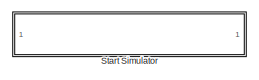
[diagram: root canvas - part 1/3, top center region]
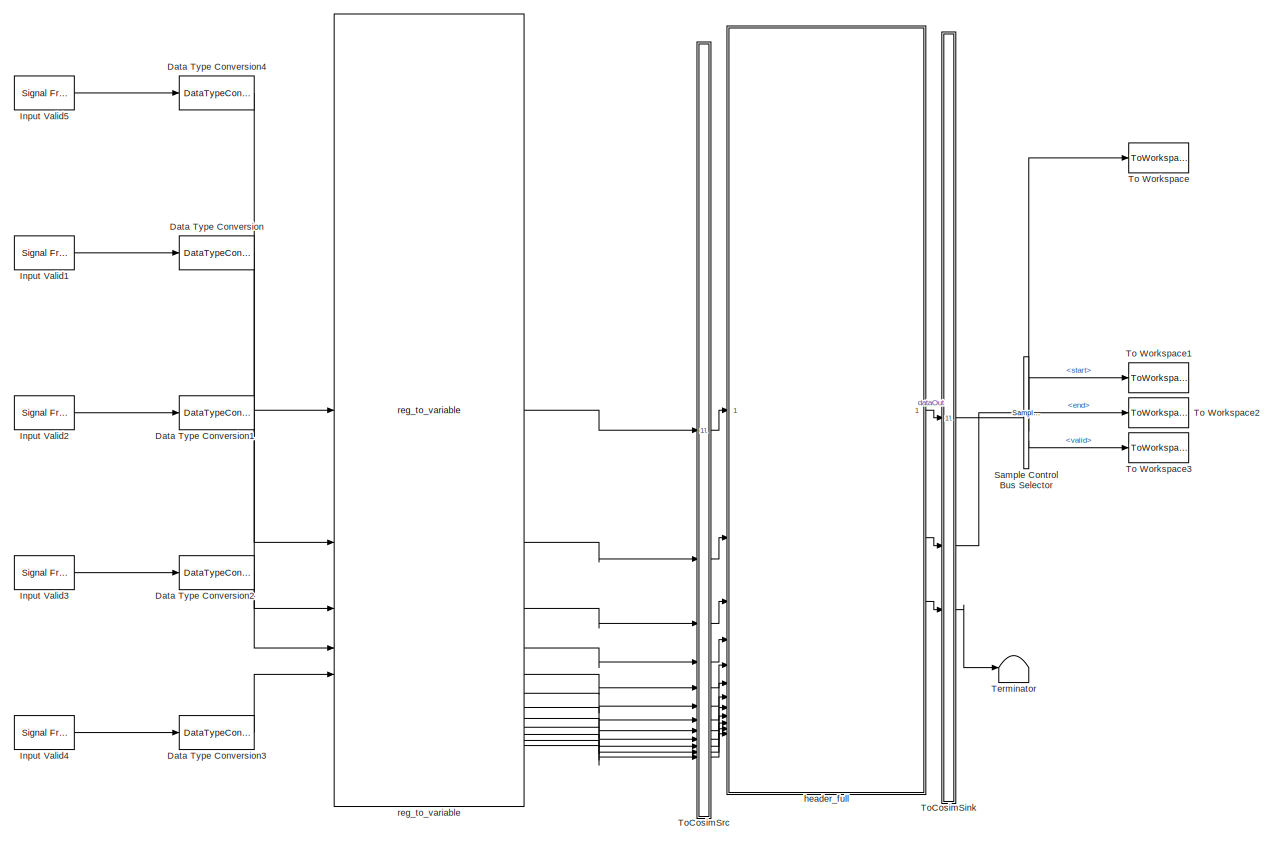
[diagram: root canvas - part 2/3, full width, top band]
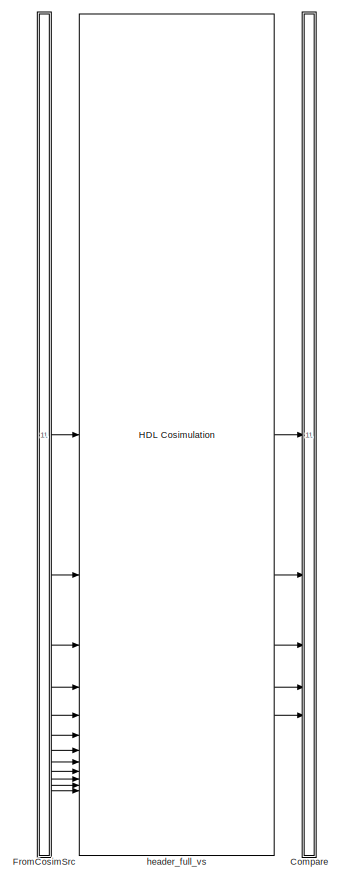
[diagram: root canvas - part 3/3, bottom center region]
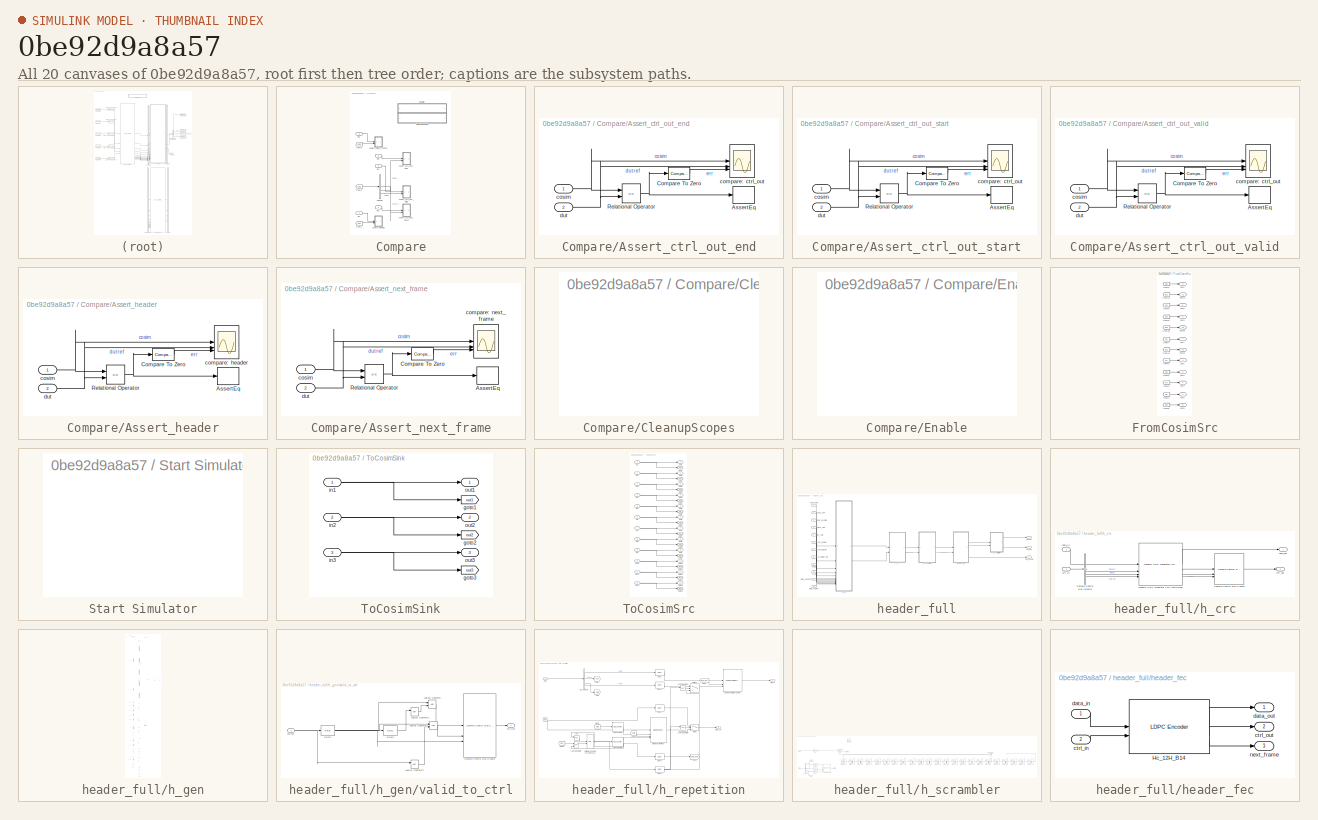
[diagram: thumbnail index - all 20 canvases of the model, root first then tree order]
MODEL slx_0be92d9a8a57
KIND model
CONFIG AbsTol = auto
CONFIG EnableMultiTasking = off
CONFIG FixedStep = auto
CONFIG MaxStep = auto
CONFIG MinStep = auto
CONFIG RelTol = 1e-3
CONFIG SampleTimeConstraint = Unconstrained
CONFIG SolverName = VariableStepAuto
CONFIG StartTime = 0.0
CONFIG StopTime = 10.0
BLOCK [SubSystem] Compare
BLOCK [SubSystem] Compare/Assert_ctrl_out_end
  LibrarySourceBlock = hdlmdlgenlib/AssertEq
BLOCK [Assertion] Compare/Assert_ctrl_out_end/AssertEq
BLOCK [Reference] Compare/Assert_ctrl_out_end/Compare To Zero  REF=simulink/Logic and Bit
Operations/Compare
To Zero
  SourceBlock = simulink/Logic and Bit\nOperations/Compare\nTo Zero
  SourceType = Compare To Zero
BLOCK [RelationalOperator] Compare/Assert_ctrl_out_end/Relational Operator
  InputSameDT = off
  Operator = ==
  OutDataTypeStr = boolean
BLOCK [Scope] Compare/Assert_ctrl_out_end/compare: ctrl_out
  Floating = off
  NumInputPorts = 3
  ScopeSpecificationString = Simulink.scopes.TimeScopeBlockCfg('CurrentConfiguration', extmgr.ConfigurationSet(extmgr.Configuration('Core','General UI',true,'MessageLogAutoOpenMode','for warn/fail messages','ShowCloseAll',true,'ShowBringAllForward',true),extmgr.Configuration('Core','Source UI',true,'PlaybackToolbar',true),extmgr.Configuration('Sources','WiredSimulink',true,'PointsPerSignal',50000,'DataLoggingDecimation','1','...<+3551ch>  <repeated x5 — deduplicated; at blocks: compare: ctrl_out, compare: header, compare: next_frame>
BLOCK [Inport] Compare/Assert_ctrl_out_end/cosim
BLOCK [Inport] Compare/Assert_ctrl_out_end/dut
  Port = 2
BLOCK [SubSystem] Compare/Assert_ctrl_out_start
  LibrarySourceBlock = hdlmdlgenlib/AssertEq
BLOCK [Assertion] Compare/Assert_ctrl_out_start/AssertEq
BLOCK [Reference] Compare/Assert_ctrl_out_start/Compare To Zero  REF=simulink/Logic and Bit
Operations/Compare
To Zero
  SourceBlock = simulink/Logic and Bit\nOperations/Compare\nTo Zero
  SourceType = Compare To Zero
BLOCK [RelationalOperator] Compare/Assert_ctrl_out_start/Relational Operator
  InputSameDT = off
  Operator = ==
  OutDataTypeStr = boolean
BLOCK [Scope] Compare/Assert_ctrl_out_start/compare: ctrl_out
  Floating = off
  NumInputPorts = 3
BLOCK [Inport] Compare/Assert_ctrl_out_start/cosim
BLOCK [Inport] Compare/Assert_ctrl_out_start/dut
  Port = 2
BLOCK [SubSystem] Compare/Assert_ctrl_out_valid
  LibrarySourceBlock = hdlmdlgenlib/AssertEq
BLOCK [Assertion] Compare/Assert_ctrl_out_valid/AssertEq
BLOCK [Reference] Compare/Assert_ctrl_out_valid/Compare To Zero  REF=simulink/Logic and Bit
Operations/Compare
To Zero
  SourceBlock = simulink/Logic and Bit\nOperations/Compare\nTo Zero
  SourceType = Compare To Zero
BLOCK [RelationalOperator] Compare/Assert_ctrl_out_valid/Relational Operator
  InputSameDT = off
  Operator = ==
  OutDataTypeStr = boolean
BLOCK [Scope] Compare/Assert_ctrl_out_valid/compare: ctrl_out
  Floating = off
  NumInputPorts = 3
BLOCK [Inport] Compare/Assert_ctrl_out_valid/cosim
BLOCK [Inport] Compare/Assert_ctrl_out_valid/dut
  Port = 2
BLOCK [SubSystem] Compare/Assert_header
  LibrarySourceBlock = hdlmdlgenlib/AssertEq
BLOCK [Assertion] Compare/Assert_header/AssertEq
BLOCK [Reference] Compare/Assert_header/Compare To Zero  REF=simulink/Logic and Bit
Operations/Compare
To Zero
  SourceBlock = simulink/Logic and Bit\nOperations/Compare\nTo Zero
  SourceType = Compare To Zero
BLOCK [RelationalOperator] Compare/Assert_header/Relational Operator
  InputSameDT = off
  Operator = ==
  OutDataTypeStr = boolean
BLOCK [Scope] Compare/Assert_header/compare: header
  Floating = off
  NumInputPorts = 3
BLOCK [Inport] Compare/Assert_header/cosim
BLOCK [Inport] Compare/Assert_header/dut
  Port = 2
BLOCK [SubSystem] Compare/Assert_next_frame
  LibrarySourceBlock = hdlmdlgenlib/AssertEq
BLOCK [Assertion] Compare/Assert_next_frame/AssertEq
BLOCK [Reference] Compare/Assert_next_frame/Compare To Zero  REF=simulink/Logic and Bit
Operations/Compare
To Zero
  SourceBlock = simulink/Logic and Bit\nOperations/Compare\nTo Zero
  SourceType = Compare To Zero
BLOCK [RelationalOperator] Compare/Assert_next_frame/Relational Operator
  InputSameDT = off
  Operator = ==
  OutDataTypeStr = boolean
BLOCK [Scope] Compare/Assert_next_frame/compare: next_frame
  Floating = off
  NumInputPorts = 3
BLOCK [Inport] Compare/Assert_next_frame/cosim
BLOCK [Inport] Compare/Assert_next_frame/dut
  Port = 2
BLOCK [BusSelector] Compare/BusSel
  OutputSignals = start,end,valid
BLOCK [SubSystem] Compare/CleanupScopes
  OpenFcn = blkName = gcb; %self block\nidx = regexp(blkName, '/CleanupScopes$', 'once');\nblkParent = blkName(1:idx-1);\nblks=find_system(blkParent, 'LookUnderMasks', 'all','blocktype', 'Scope');\nfor itr = 1:length(blks)\n	 hScopeCfg = get_param(blks{itr},'ScopeConfiguration');\n	 hScopeCfg.Visible = ~ hScopeCfg.Visible;\nend\ndrawnow;
BLOCK [SubSystem] Compare/Enable
  OpenFcn = blkName = gcb;\nidx = regexp(blkName, '/Enable$', 'once');\nblkParent = blkName(1:idx-1);\nblks=find_system(blkParent, 'LookUnderMasks', 'all','blocktype', 'Assertion');\ne = get_param(blks{1}, 'Enabled');\nif strcmp(e, 'on'), f= 'off';, else, f = 'on';, end\nfor ii=1:length(blks), set_param(blks{ii}, 'Enabled', f);, end\nset_param(gcb, 'MaskDisplay',['fprintf(message(''hdlcoder:cosim:vnl_dblclick_assert...<+47ch>
BLOCK [From] Compare/from1
  GotoTag = out1
  TagVisibility = global
BLOCK [From] Compare/from2
  GotoTag = out2
  TagVisibility = global
BLOCK [From] Compare/from3
  GotoTag = out3
  TagVisibility = global
BLOCK [Inport] Compare/in1
BLOCK [Inport] Compare/in2
  Port = 2
BLOCK [Inport] Compare/in3
  Port = 3
BLOCK [Inport] Compare/in4
  Port = 4
BLOCK [Inport] Compare/in5
  Port = 5
BLOCK [DataTypeConversion] Data Type Conversion
  OutDataTypeStr = uint32
  RndMeth = Floor
  SaturateOnIntegerOverflow = off
BLOCK [DataTypeConversion] Data Type Conversion1
  OutDataTypeStr = uint32
  RndMeth = Floor
  SaturateOnIntegerOverflow = off
BLOCK [DataTypeConversion] Data Type Conversion2
  OutDataTypeStr = uint32
  RndMeth = Floor
  SaturateOnIntegerOverflow = off
BLOCK [DataTypeConversion] Data Type Conversion3
  OutDataTypeStr = uint32
  RndMeth = Floor
  SaturateOnIntegerOverflow = off
BLOCK [DataTypeConversion] Data Type Conversion4
  OutDataTypeStr = boolean
  RndMeth = Floor
  SaturateOnIntegerOverflow = off
BLOCK [SubSystem] FromCosimSrc
BLOCK [From] FromCosimSrc/from1
  GotoTag = in1
  TagVisibility = global
BLOCK [From] FromCosimSrc/from10
  GotoTag = in10
  TagVisibility = global
BLOCK [From] FromCosimSrc/from11
  GotoTag = in11
  TagVisibility = global
BLOCK [From] FromCosimSrc/from12
  GotoTag = in12
  TagVisibility = global
BLOCK [From] FromCosimSrc/from2
  GotoTag = in2
  TagVisibility = global
BLOCK [From] FromCosimSrc/from3
  GotoTag = in3
  TagVisibility = global
BLOCK [From] FromCosimSrc/from4
  GotoTag = in4
  TagVisibility = global
BLOCK [From] FromCosimSrc/from5
  GotoTag = in5
  TagVisibility = global
BLOCK [From] FromCosimSrc/from6
  GotoTag = in6
  TagVisibility = global
BLOCK [From] FromCosimSrc/from7
  GotoTag = in7
  TagVisibility = global
BLOCK [From] FromCosimSrc/from8
  GotoTag = in8
  TagVisibility = global
BLOCK [From] FromCosimSrc/from9
  GotoTag = in9
  TagVisibility = global
BLOCK [Outport] FromCosimSrc/out1
BLOCK [Outport] FromCosimSrc/out10
  Port = 10
BLOCK [Outport] FromCosimSrc/out11
  Port = 11
BLOCK [Outport] FromCosimSrc/out12
  Port = 12
BLOCK [Outport] FromCosimSrc/out2
  Port = 2
BLOCK [Outport] FromCosimSrc/out3
  Port = 3
BLOCK [Outport] FromCosimSrc/out4
  Port = 4
BLOCK [Outport] FromCosimSrc/out5
  Port = 5
BLOCK [Outport] FromCosimSrc/out6
  Port = 6
BLOCK [Outport] FromCosimSrc/out7
  Port = 7
BLOCK [Outport] FromCosimSrc/out8
  Port = 8
BLOCK [Outport] FromCosimSrc/out9
  Port = 9
BLOCK [Reference] Input Valid1  REF=dspsrcs4/Signal From
Workspace
  SourceBlock = dspsrcs4/Signal From\nWorkspace
  SourceType = Signal From Workspace
BLOCK [Reference] Input Valid2  REF=dspsrcs4/Signal From
Workspace
  SourceBlock = dspsrcs4/Signal From\nWorkspace
  SourceType = Signal From Workspace
BLOCK [Reference] Input Valid3  REF=dspsrcs4/Signal From
Workspace
  SourceBlock = dspsrcs4/Signal From\nWorkspace
  SourceType = Signal From Workspace
BLOCK [Reference] Input Valid4  REF=dspsrcs4/Signal From
Workspace
  SourceBlock = dspsrcs4/Signal From\nWorkspace
  SourceType = Signal From Workspace
BLOCK [Reference] Input Valid5  REF=dspsrcs4/Signal From
Workspace
  SourceBlock = dspsrcs4/Signal From\nWorkspace
  SourceType = Signal From Workspace
BLOCK [Reference] Sample Control Bus Selector  REF=whdlutilities/Sample Control
Bus Selector
  SourceBlock = whdlutilities/Sample Control\nBus Selector
BLOCK [SubSystem] Start Simulator
  OpenFcn = cosimDirName = pwd;\ncd 'hdl_prj_header_full/hdlsrc/HDLHeaderFull';\n[s,r] = system('vivado -mode batch -source gm_HDLHeaderFull_vs.tcl','-echo');\ncd (cosimDirName);\nclear cosimDirName;\nif s\n   error('Failed to create Vivado HDL design DLL using script gm_HDLHeaderFull_vs.tcl.');\nend
BLOCK [Terminator] Terminator
BLOCK [ToWorkspace] To Workspace
  MaxDataPoints = inf
  SampleTime = 1/(8*fs)
  Save2DSignal = 2-D array (concatenate along first dimension)
  VariableName = dataOut
BLOCK [ToWorkspace] To Workspace1
  MaxDataPoints = inf
  SampleTime = 1/(8*fs)
  Save2DSignal = 2-D array (concatenate along first dimension)
  VariableName = startOut
BLOCK [ToWorkspace] To Workspace2
  MaxDataPoints = inf
  SampleTime = 1/(8*fs)
  Save2DSignal = 2-D array (concatenate along first dimension)
  VariableName = endOut
BLOCK [ToWorkspace] To Workspace3
  MaxDataPoints = inf
  SampleTime = 1/(8*fs)
  Save2DSignal = 2-D array (concatenate along first dimension)
  VariableName = validOut
BLOCK [SubSystem] ToCosimSink
BLOCK [Goto] ToCosimSink/goto1
  GotoTag = out1
  TagVisibility = global
BLOCK [Goto] ToCosimSink/goto2
  GotoTag = out2
  TagVisibility = global
BLOCK [Goto] ToCosimSink/goto3
  GotoTag = out3
  TagVisibility = global
BLOCK [Inport] ToCosimSink/in1
BLOCK [Inport] ToCosimSink/in2
  Port = 2
BLOCK [Inport] ToCosimSink/in3
  Port = 3
BLOCK [Outport] ToCosimSink/out1
BLOCK [Outport] ToCosimSink/out2
  Port = 2
BLOCK [Outport] ToCosimSink/out3
  Port = 3
BLOCK [SubSystem] ToCosimSrc
BLOCK [Goto] ToCosimSrc/goto1
  GotoTag = in1
  TagVisibility = global
BLOCK [Goto] ToCosimSrc/goto10
  GotoTag = in10
  TagVisibility = global
BLOCK [Goto] ToCosimSrc/goto11
  GotoTag = in11
  TagVisibility = global
BLOCK [Goto] ToCosimSrc/goto12
  GotoTag = in12
  TagVisibility = global
BLOCK [Goto] ToCosimSrc/goto2
  GotoTag = in2
  TagVisibility = global
BLOCK [Goto] ToCosimSrc/goto3
  GotoTag = in3
  TagVisibility = global
BLOCK [Goto] ToCosimSrc/goto4
  GotoTag = in4
  TagVisibility = global
BLOCK [Goto] ToCosimSrc/goto5
  GotoTag = in5
  TagVisibility = global
BLOCK [Goto] ToCosimSrc/goto6
  GotoTag = in6
  TagVisibility = global
BLOCK [Goto] ToCosimSrc/goto7
  GotoTag = in7
  TagVisibility = global
BLOCK [Goto] ToCosimSrc/goto8
  GotoTag = in8
  TagVisibility = global
BLOCK [Goto] ToCosimSrc/goto9
  GotoTag = in9
  TagVisibility = global
BLOCK [Inport] ToCosimSrc/in1
BLOCK [Inport] ToCosimSrc/in10
  Port = 10
BLOCK [Inport] ToCosimSrc/in11
  Port = 11
BLOCK [Inport] ToCosimSrc/in12
  Port = 12
BLOCK [Inport] ToCosimSrc/in2
  Port = 2
BLOCK [Inport] ToCosimSrc/in3
  Port = 3
BLOCK [Inport] ToCosimSrc/in4
  Port = 4
BLOCK [Inport] ToCosimSrc/in5
  Port = 5
BLOCK [Inport] ToCosimSrc/in6
  Port = 6
BLOCK [Inport] ToCosimSrc/in7
  Port = 7
BLOCK [Inport] ToCosimSrc/in8
  Port = 8
BLOCK [Inport] ToCosimSrc/in9
  Port = 9
BLOCK [Outport] ToCosimSrc/out1
BLOCK [Outport] ToCosimSrc/out10
  Port = 10
BLOCK [Outport] ToCosimSrc/out11
  Port = 11
BLOCK [Outport] ToCosimSrc/out12
  Port = 12
BLOCK [Outport] ToCosimSrc/out2
  Port = 2
BLOCK [Outport] ToCosimSrc/out3
  Port = 3
BLOCK [Outport] ToCosimSrc/out4
  Port = 4
BLOCK [Outport] ToCosimSrc/out5
  Port = 5
BLOCK [Outport] ToCosimSrc/out6
  Port = 6
BLOCK [Outport] ToCosimSrc/out7
  Port = 7
BLOCK [Outport] ToCosimSrc/out8
  Port = 8
BLOCK [Outport] ToCosimSrc/out9
  Port = 9
BLOCK [SubSystem] header_full
BLOCK [Inport] header_full/bat_id
  OutDataTypeStr = boolean
  Port = 9
  PortDimensions = [1 5]
  SampleTime = 1
BLOCK [Inport] header_full/block_size
  OutDataTypeStr = boolean
  Port = 4
  PortDimensions = [1 2]
  SampleTime = 1
BLOCK [Inport] header_full/concat_factor
  OutDataTypeStr = boolean
  Port = 7
  PortDimensions = [1 3]
  SampleTime = 1
BLOCK [Inport] header_full/cp_id
  OutDataTypeStr = boolean
  Port = 10
  PortDimensions = [1 3]
  SampleTime = 1
BLOCK [Outport] header_full/ctrl_out
  Port = 2
  SampleTime = 0.125
BLOCK [Inport] header_full/fec_rate
  OutDataTypeStr = boolean
  Port = 5
  PortDimensions = [1 3]
  SampleTime = 1
BLOCK [SubSystem] header_full/h_crc
BLOCK [Reference] header_full/h_crc/General CRC Generator HDL Optimized  REF=commhdlcrc/General CRC
Generator
HDL Optimized
  SourceBlock = commhdlcrc/General CRC\nGenerator\nHDL Optimized
  SourceType = General CRC Generator HDL Optimized
BLOCK [Reference] header_full/h_crc/Sample Control Bus Creator  REF=whdlutilities/Sample Control
Bus Creator
  SourceBlock = whdlutilities/Sample Control\nBus Creator
  SourceType = Sample Control Bus Creator
BLOCK [Reference] header_full/h_crc/Sample Control Bus Selector  REF=whdlutilities/Sample Control
Bus Selector
  SourceBlock = whdlutilities/Sample Control\nBus Selector
BLOCK [Inport] header_full/h_crc/ctrl_in
  Port = 2
  SampleTime = 0.125
BLOCK [Outport] header_full/h_crc/ctrl_out
  Port = 2
  SampleTime = 0.125
BLOCK [Inport] header_full/h_crc/data_in
  OutDataTypeStr = boolean
  SampleTime = 0.125
BLOCK [Outport] header_full/h_crc/data_out
  SampleTime = 0.125
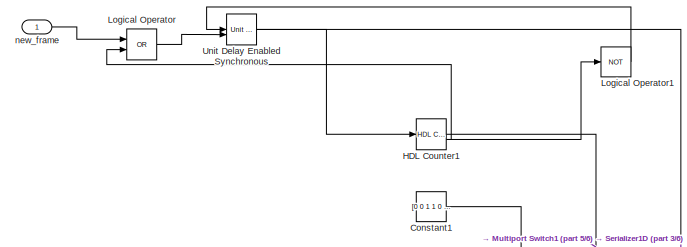
[diagram: header_full/h_gen - part 1/6, top left region]
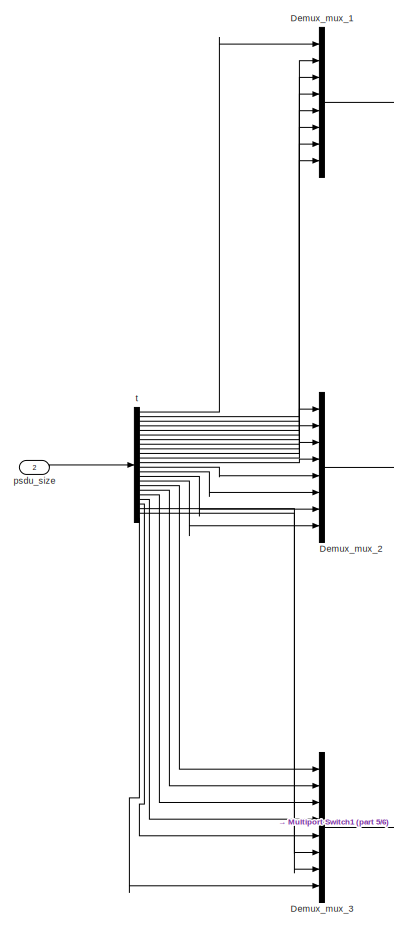
[diagram: header_full/h_gen - part 2/6, top left region]
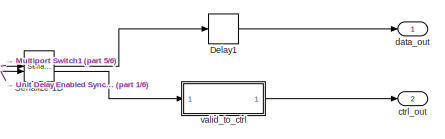
[diagram: header_full/h_gen - part 3/6, top right region]
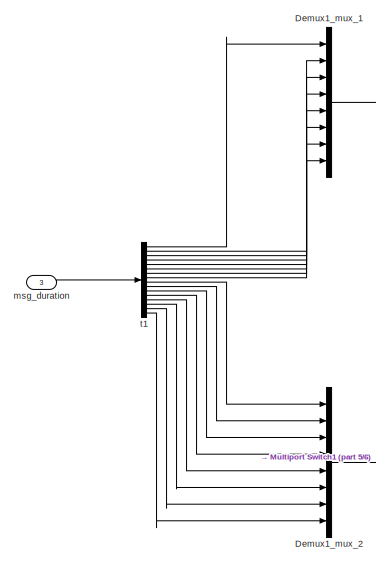
[diagram: header_full/h_gen - part 4/6, middle left region]
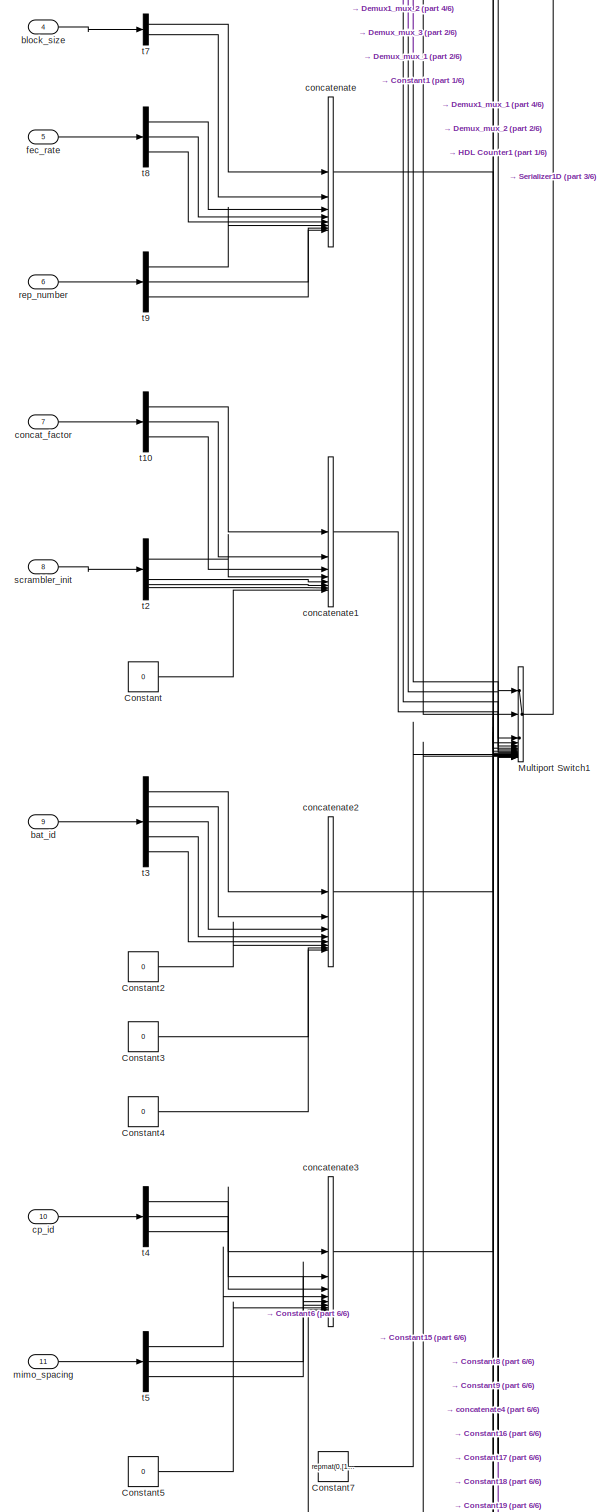
[diagram: header_full/h_gen - part 5/6, central region]
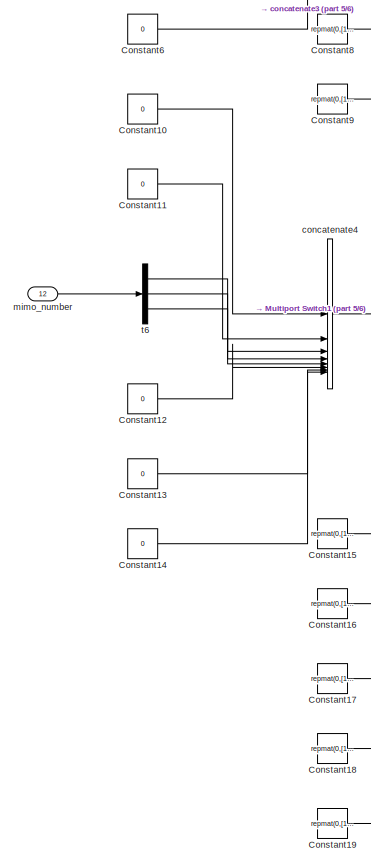
[diagram: header_full/h_gen - part 6/6, bottom left region]
BLOCK [SubSystem] header_full/h_gen
BLOCK [Constant] header_full/h_gen/Constant
  OutDataTypeStr = boolean
  SampleTime = 1
  Value = 0
BLOCK [Constant] header_full/h_gen/Constant1
  OutDataTypeStr = boolean
  SampleTime = 1
  Value = [0 0 1 1 0 0 0 0]
  VectorParams1D = off
BLOCK [Constant] header_full/h_gen/Constant10
  OutDataTypeStr = boolean
  SampleTime = 1
  Value = 0
BLOCK [Constant] header_full/h_gen/Constant11
  OutDataTypeStr = boolean
  SampleTime = 1
  Value = 0
BLOCK [Constant] header_full/h_gen/Constant12
  OutDataTypeStr = boolean
  SampleTime = 1
  Value = 0
BLOCK [Constant] header_full/h_gen/Constant13
  OutDataTypeStr = boolean
  SampleTime = 1
  Value = 0
BLOCK [Constant] header_full/h_gen/Constant14
  OutDataTypeStr = boolean
  SampleTime = 1
  Value = 0
BLOCK [Constant] header_full/h_gen/Constant15
  OutDataTypeStr = boolean
  SampleTime = 1
  Value = repmat(0,[1  8])
  VectorParams1D = off
BLOCK [Constant] header_full/h_gen/Constant16
  OutDataTypeStr = boolean
  SampleTime = 1
  Value = repmat(0,[1  8])
  VectorParams1D = off
BLOCK [Constant] header_full/h_gen/Constant17
  OutDataTypeStr = boolean
  SampleTime = 1
  Value = repmat(0,[1  8])
  VectorParams1D = off
BLOCK [Constant] header_full/h_gen/Constant18
  OutDataTypeStr = boolean
  SampleTime = 1
  Value = repmat(0,[1  8])
  VectorParams1D = off
BLOCK [Constant] header_full/h_gen/Constant19
  OutDataTypeStr = boolean
  SampleTime = 1
  Value = repmat(0,[1  8])
  VectorParams1D = off
BLOCK [Constant] header_full/h_gen/Constant2
  OutDataTypeStr = boolean
  SampleTime = 1
  Value = 0
BLOCK [Constant] header_full/h_gen/Constant3
  OutDataTypeStr = boolean
  SampleTime = 1
  Value = 0
BLOCK [Constant] header_full/h_gen/Constant4
  OutDataTypeStr = boolean
  SampleTime = 1
  Value = 0
BLOCK [Constant] header_full/h_gen/Constant5
  OutDataTypeStr = boolean
  SampleTime = 1
  Value = 0
BLOCK [Constant] header_full/h_gen/Constant6
  OutDataTypeStr = boolean
  SampleTime = 1
  Value = 0
BLOCK [Constant] header_full/h_gen/Constant7
  OutDataTypeStr = boolean
  SampleTime = 1
  Value = repmat(0,[1  8])
  VectorParams1D = off
BLOCK [Constant] header_full/h_gen/Constant8
  OutDataTypeStr = boolean
  SampleTime = 1
  Value = repmat(0,[1  8])
  VectorParams1D = off
BLOCK [Constant] header_full/h_gen/Constant9
  OutDataTypeStr = boolean
  SampleTime = 1
  Value = repmat(0,[1  8])
  VectorParams1D = off
BLOCK [Delay] header_full/h_gen/Delay1
  DelayLength = double(1)
  InitialCondition = 0
  InputPortMap = u0
  SampleTime = 0.125
BLOCK [Mux] header_full/h_gen/Demux1_mux_1
  DisplayOption = bar
  Inputs = 8
BLOCK [Mux] header_full/h_gen/Demux1_mux_2
  DisplayOption = bar
  Inputs = 8
BLOCK [Mux] header_full/h_gen/Demux_mux_1
  DisplayOption = bar
  Inputs = 8
BLOCK [Mux] header_full/h_gen/Demux_mux_2
  DisplayOption = bar
  Inputs = 8
BLOCK [Mux] header_full/h_gen/Demux_mux_3
  DisplayOption = bar
  Inputs = 8
BLOCK [Reference] header_full/h_gen/HDL Counter1  REF=hdlsllib/Sources/HDL Counter
  SourceBlock = hdlsllib/Sources/HDL Counter
  SourceType = HDL Counter
BLOCK [Logic] header_full/h_gen/Logical Operator
  AllPortsSameDT = off
  Operator = OR
  OutDataTypeStr = boolean
  SampleTime = 1
BLOCK [Logic] header_full/h_gen/Logical Operator1
  AllPortsSameDT = off
  Inputs = 1
  Operator = NOT
  OutDataTypeStr = boolean
  SampleTime = 1
BLOCK [MultiPortSwitch] header_full/h_gen/Multiport Switch1
  DataPortOrder = Zero-based contiguous
  DiagnosticForDefault = None
  InputSameDT = off
  Inputs = 19
  SampleTime = 1
  SaturateOnIntegerOverflow = off
  zeroidx = on
BLOCK [Reference] header_full/h_gen/Serializer1D  REF=hdlsllib/HDL Operations/Serializer1D
  SourceBlock = hdlsllib/HDL Operations/Serializer1D
  SourceType = Serializer1D
BLOCK [Reference] header_full/h_gen/Unit Delay Enabled Synchronous  REF=hdlsllib/Discrete/Unit Delay Enabled
Synchronous
  SourceBlock = hdlsllib/Discrete/Unit Delay Enabled\nSynchronous
  SourceType = Unit Delay Enabled Synchronous
BLOCK [Inport] header_full/h_gen/bat_id
  OutDataTypeStr = boolean
  Port = 9
  PortDimensions = [1 5]
  SampleTime = 1
BLOCK [Inport] header_full/h_gen/block_size
  OutDataTypeStr = boolean
  Port = 4
  PortDimensions = [1 2]
  SampleTime = 1
BLOCK [Inport] header_full/h_gen/concat_factor
  OutDataTypeStr = boolean
  Port = 7
  PortDimensions = [1 3]
  SampleTime = 1
BLOCK [Concatenate] header_full/h_gen/concatenate
  ConcatenateDimension = 2
  Mode = Multidimensional array
  NumInputs = 8
BLOCK [Concatenate] header_full/h_gen/concatenate1
  ConcatenateDimension = 2
  Mode = Multidimensional array
  NumInputs = 8
BLOCK [Concatenate] header_full/h_gen/concatenate2
  ConcatenateDimension = 2
  Mode = Multidimensional array
  NumInputs = 8
BLOCK [Concatenate] header_full/h_gen/concatenate3
  ConcatenateDimension = 2
  Mode = Multidimensional array
  NumInputs = 8
BLOCK [Concatenate] header_full/h_gen/concatenate4
  ConcatenateDimension = 2
  Mode = Multidimensional array
  NumInputs = 8
BLOCK [Inport] header_full/h_gen/cp_id
  OutDataTypeStr = boolean
  Port = 10
  PortDimensions = [1 3]
  SampleTime = 1
BLOCK [Outport] header_full/h_gen/ctrl_out
  Port = 2
  SampleTime = 0.125
BLOCK [Outport] header_full/h_gen/data_out
  SampleTime = 0.125
BLOCK [Inport] header_full/h_gen/fec_rate
  OutDataTypeStr = boolean
  Port = 5
  PortDimensions = [1 3]
  SampleTime = 1
BLOCK [Inport] header_full/h_gen/mimo_number
  OutDataTypeStr = boolean
  Port = 12
  PortDimensions = [1 3]
  SampleTime = 1
BLOCK [Inport] header_full/h_gen/mimo_spacing
  OutDataTypeStr = boolean
  Port = 11
  PortDimensions = [1 3]
  SampleTime = 1
BLOCK [Inport] header_full/h_gen/msg_duration
  OutDataTypeStr = boolean
  Port = 3
  PortDimensions = [1 16]
  SampleTime = 1
BLOCK [Inport] header_full/h_gen/new_frame
  OutDataTypeStr = boolean
  SampleTime = 1
BLOCK [Inport] header_full/h_gen/psdu_size
  OutDataTypeStr = boolean
  Port = 2
  PortDimensions = [1 24]
  SampleTime = 1
BLOCK [Inport] header_full/h_gen/rep_number
  OutDataTypeStr = boolean
  Port = 6
  PortDimensions = [1 3]
  SampleTime = 1
BLOCK [Inport] header_full/h_gen/scrambler_init
  OutDataTypeStr = boolean
  Port = 8
  PortDimensions = [1 4]
  SampleTime = 1
BLOCK [Demux] header_full/h_gen/t
  Outputs = 24
BLOCK [Demux] header_full/h_gen/t1
  Outputs = 16
BLOCK [Demux] header_full/h_gen/t10
  Outputs = 3
BLOCK [Demux] header_full/h_gen/t2
BLOCK [Demux] header_full/h_gen/t3
  Outputs = 5
BLOCK [Demux] header_full/h_gen/t4
  Outputs = 3
BLOCK [Demux] header_full/h_gen/t5
  Outputs = 3
BLOCK [Demux] header_full/h_gen/t6
  Outputs = 3
BLOCK [Demux] header_full/h_gen/t7
  Outputs = 2
BLOCK [Demux] header_full/h_gen/t8
  Outputs = 3
BLOCK [Demux] header_full/h_gen/t9
  Outputs = 3
BLOCK [SubSystem] header_full/h_gen/valid_to_ctrl
BLOCK [Delay] header_full/h_gen/valid_to_ctrl/Delay1
  DelayLength = 1
  InitialCondition = 0
  InputPortMap = u0
  UseCircularBuffer = on
  UserDataPersistent = on
BLOCK [Delay] header_full/h_gen/valid_to_ctrl/Delay2
  DelayLength = 1
  InitialCondition = 0
  InputPortMap = u0
  UseCircularBuffer = on
  UserDataPersistent = on
BLOCK [Logic] header_full/h_gen/valid_to_ctrl/Logical Operator
  AllPortsSameDT = off
  IconShape = distinctive
  OutDataTypeStr = boolean
BLOCK [Logic] header_full/h_gen/valid_to_ctrl/Logical Operator1
  AllPortsSameDT = off
  IconShape = distinctive
  Operator = NOT
  OutDataTypeStr = boolean
BLOCK [Logic] header_full/h_gen/valid_to_ctrl/Logical Operator2
  AllPortsSameDT = off
  IconShape = distinctive
  OutDataTypeStr = boolean
BLOCK [Logic] header_full/h_gen/valid_to_ctrl/Logical Operator3
  AllPortsSameDT = off
  IconShape = distinctive
  Operator = NOT
  OutDataTypeStr = boolean
BLOCK [Reference] header_full/h_gen/valid_to_ctrl/Sample Control Bus Creator  REF=whdlutilities/Sample Control
Bus Creator
  SourceBlock = whdlutilities/Sample Control\nBus Creator
  SourceType = Sample Control Bus Creator
BLOCK [Outport] header_full/h_gen/valid_to_ctrl/ctrlOut
  SampleTime = 0.125
BLOCK [Inport] header_full/h_gen/valid_to_ctrl/validIn
  OutDataTypeStr = boolean
  SampleTime = 0.125
BLOCK [SubSystem] header_full/h_repetition
BLOCK [BusSelector] header_full/h_repetition/Bus Selector
  OutputSignals = start,end,valid
BLOCK [Delay] header_full/h_repetition/Delay
  DelayLength = 1
  InitialCondition = 0
  InputPortMap = u0
  UseCircularBuffer = on
  UserDataPersistent = on
BLOCK [Delay] header_full/h_repetition/Delay1
  DelayLength = 1
  InitialCondition = 0
  InputPortMap = u0
  UseCircularBuffer = on
  UserDataPersistent = on
BLOCK [Delay] header_full/h_repetition/Delay2
  DelayLength = 1
  InitialCondition = 0
  InputPortMap = u0
  UseCircularBuffer = on
  UserDataPersistent = on
BLOCK [Delay] header_full/h_repetition/Delay3
  DelayLength = 1
  InitialCondition = 0
  InputPortMap = u0
  UseCircularBuffer = on
  UserDataPersistent = on
BLOCK [Delay] header_full/h_repetition/Delay4
  DelayLength = 1
  InitialCondition = 0
  InputPortMap = u0
  UseCircularBuffer = on
  UserDataPersistent = on
BLOCK [From] header_full/h_repetition/From2
  GotoTag = end_out
BLOCK [From] header_full/h_repetition/From6
  GotoTag = valid
BLOCK [From] header_full/h_repetition/From7
  GotoTag = valid
BLOCK [From] header_full/h_repetition/From8
  GotoTag = end
BLOCK [Goto] header_full/h_repetition/Goto
  GotoTag = valid
BLOCK [Goto] header_full/h_repetition/Goto1
  GotoTag = end_out
BLOCK [Goto] header_full/h_repetition/Goto4
  GotoTag = end
BLOCK [Reference] header_full/h_repetition/HDL Counter2  REF=hdlsllib/Sources/HDL Counter
  SourceBlock = hdlsllib/Sources/HDL Counter
  SourceType = HDL Counter
BLOCK [Reference] header_full/h_repetition/HDL Counter3  REF=hdlsllib/Sources/HDL Counter
  SourceBlock = hdlsllib/Sources/HDL Counter
  SourceType = HDL Counter
BLOCK [Logic] header_full/h_repetition/Logical Operator
  AllPortsSameDT = off
  IconShape = distinctive
  Operator = NOT
  OutDataTypeStr = boolean
BLOCK [Logic] header_full/h_repetition/Logical Operator1
  AllPortsSameDT = off
  IconShape = distinctive
  Operator = OR
  OutDataTypeStr = boolean
BLOCK [Logic] header_full/h_repetition/Logical Operator2
  AllPortsSameDT = off
  IconShape = distinctive
  Operator = NOT
  OutDataTypeStr = boolean
BLOCK [Logic] header_full/h_repetition/NOT
  AllPortsSameDT = off
  IconShape = distinctive
  Operator = NOT
  OutDataTypeStr = boolean
BLOCK [Reference] header_full/h_repetition/Sample Control Bus Creator  REF=whdlutilities/Sample Control
Bus Creator
  SourceBlock = whdlutilities/Sample Control\nBus Creator
  SourceType = Sample Control Bus Creator
BLOCK [Reference] header_full/h_repetition/Simple Dual Port RAM  REF=hdlsllib/HDL RAMs/Simple Dual Port RAM
  SourceBlock = hdlsllib/HDL RAMs/Simple Dual Port RAM
  SourceType = Simple Dual-port RAM
BLOCK [Switch] header_full/h_repetition/Switch
  Criteria = u2 ~= 0
  InputSameDT = off
  OutDataTypeStr = boolean
  SaturateOnIntegerOverflow = off
BLOCK [Switch] header_full/h_repetition/Switch1
  Criteria = u2 ~= 0
  InputSameDT = off
  OutDataTypeStr = boolean
  SaturateOnIntegerOverflow = off
BLOCK [Reference] header_full/h_repetition/Unit Delay Enabled Synchronous1  REF=hdlsllib/Discrete/Unit Delay Enabled
Synchronous
  SourceBlock = hdlsllib/Discrete/Unit Delay Enabled\nSynchronous
  SourceType = Unit Delay Enabled Synchronous
BLOCK [Inport] header_full/h_repetition/ctrl_in
  Port = 2
  SampleTime = 0.125
BLOCK [Outport] header_full/h_repetition/ctrl_out
  Port = 2
  SampleTime = 0.125
BLOCK [Inport] header_full/h_repetition/data_in
  OutDataTypeStr = boolean
  SampleTime = 0.125
BLOCK [Outport] header_full/h_repetition/data_out
  SampleTime = 0.125
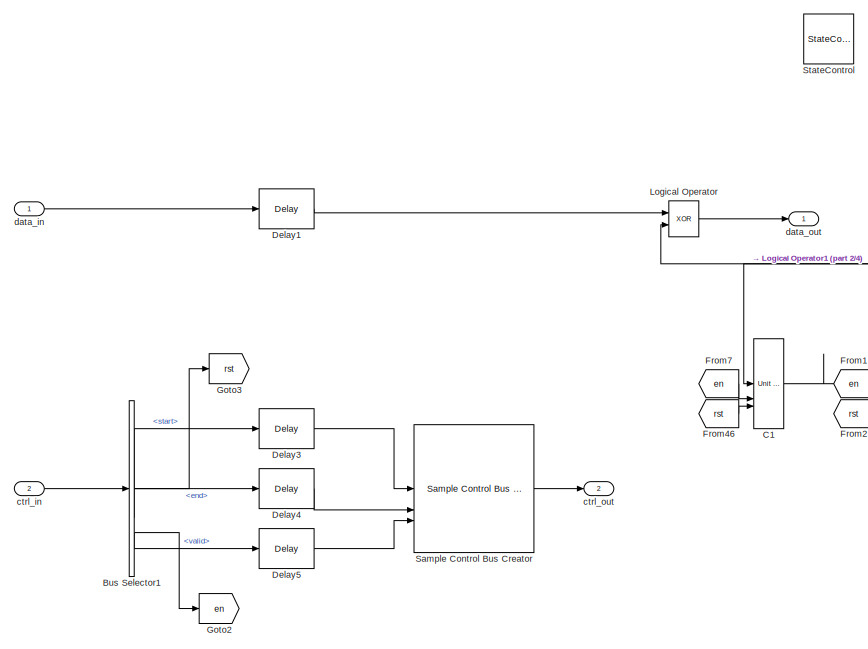
[diagram: header_full/h_scrambler - part 1/4, left side, full height]
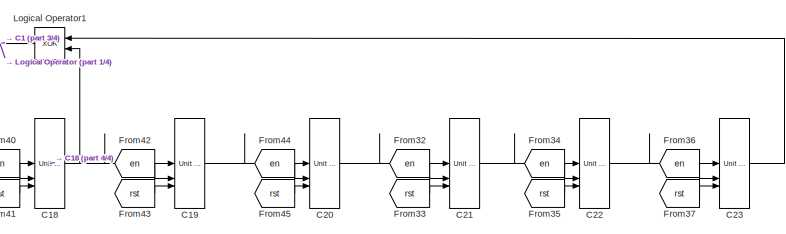
[diagram: header_full/h_scrambler - part 2/4, middle right region]
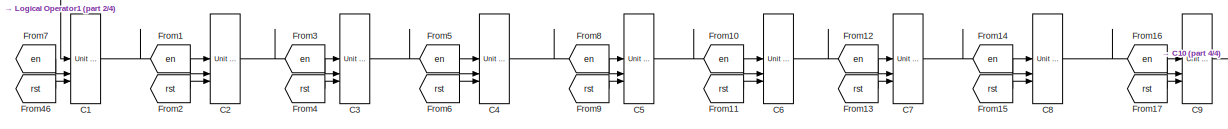
[diagram: header_full/h_scrambler - part 3/4, central region]
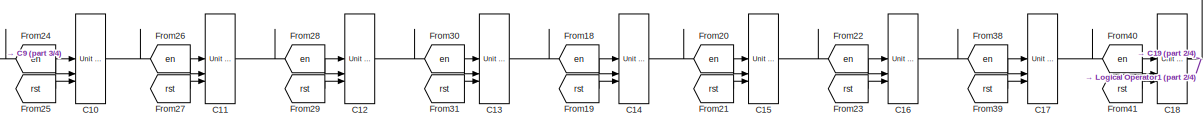
[diagram: header_full/h_scrambler - part 4/4, central region]
BLOCK [SubSystem] header_full/h_scrambler
BLOCK [BusSelector] header_full/h_scrambler/Bus Selector1
  OutputSignals = start,end,valid
BLOCK [Reference] header_full/h_scrambler/C1  REF=hdlsllib/Discrete/Unit Delay Enabled Resettable
Synchronous
  SourceBlock = hdlsllib/Discrete/Unit Delay Enabled Resettable\nSynchronous
  SourceType = Unit Delay Enabled Resettable Synchronous
BLOCK [Reference] header_full/h_scrambler/C10  REF=hdlsllib/Discrete/Unit Delay Enabled Resettable
Synchronous
  SourceBlock = hdlsllib/Discrete/Unit Delay Enabled Resettable\nSynchronous
  SourceType = Unit Delay Enabled Resettable Synchronous
BLOCK [Reference] header_full/h_scrambler/C11  REF=hdlsllib/Discrete/Unit Delay Enabled Resettable
Synchronous
  SourceBlock = hdlsllib/Discrete/Unit Delay Enabled Resettable\nSynchronous
  SourceType = Unit Delay Enabled Resettable Synchronous
BLOCK [Reference] header_full/h_scrambler/C12  REF=hdlsllib/Discrete/Unit Delay Enabled Resettable
Synchronous
  SourceBlock = hdlsllib/Discrete/Unit Delay Enabled Resettable\nSynchronous
  SourceType = Unit Delay Enabled Resettable Synchronous
BLOCK [Reference] header_full/h_scrambler/C13  REF=hdlsllib/Discrete/Unit Delay Enabled Resettable
Synchronous
  SourceBlock = hdlsllib/Discrete/Unit Delay Enabled Resettable\nSynchronous
  SourceType = Unit Delay Enabled Resettable Synchronous
BLOCK [Reference] header_full/h_scrambler/C14  REF=hdlsllib/Discrete/Unit Delay Enabled Resettable
Synchronous
  SourceBlock = hdlsllib/Discrete/Unit Delay Enabled Resettable\nSynchronous
  SourceType = Unit Delay Enabled Resettable Synchronous
BLOCK [Reference] header_full/h_scrambler/C15  REF=hdlsllib/Discrete/Unit Delay Enabled Resettable
Synchronous
  SourceBlock = hdlsllib/Discrete/Unit Delay Enabled Resettable\nSynchronous
  SourceType = Unit Delay Enabled Resettable Synchronous
BLOCK [Reference] header_full/h_scrambler/C16  REF=hdlsllib/Discrete/Unit Delay Enabled Resettable
Synchronous
  SourceBlock = hdlsllib/Discrete/Unit Delay Enabled Resettable\nSynchronous
  SourceType = Unit Delay Enabled Resettable Synchronous
BLOCK [Reference] header_full/h_scrambler/C17  REF=hdlsllib/Discrete/Unit Delay Enabled Resettable
Synchronous
  SourceBlock = hdlsllib/Discrete/Unit Delay Enabled Resettable\nSynchronous
  SourceType = Unit Delay Enabled Resettable Synchronous
BLOCK [Reference] header_full/h_scrambler/C18  REF=hdlsllib/Discrete/Unit Delay Enabled Resettable
Synchronous
  SourceBlock = hdlsllib/Discrete/Unit Delay Enabled Resettable\nSynchronous
  SourceType = Unit Delay Enabled Resettable Synchronous
BLOCK [Reference] header_full/h_scrambler/C19  REF=hdlsllib/Discrete/Unit Delay Enabled Resettable
Synchronous
  SourceBlock = hdlsllib/Discrete/Unit Delay Enabled Resettable\nSynchronous
  SourceType = Unit Delay Enabled Resettable Synchronous
BLOCK [Reference] header_full/h_scrambler/C2  REF=hdlsllib/Discrete/Unit Delay Enabled Resettable
Synchronous
  SourceBlock = hdlsllib/Discrete/Unit Delay Enabled Resettable\nSynchronous
  SourceType = Unit Delay Enabled Resettable Synchronous
BLOCK [Reference] header_full/h_scrambler/C20  REF=hdlsllib/Discrete/Unit Delay Enabled Resettable
Synchronous
  SourceBlock = hdlsllib/Discrete/Unit Delay Enabled Resettable\nSynchronous
  SourceType = Unit Delay Enabled Resettable Synchronous
BLOCK [Reference] header_full/h_scrambler/C21  REF=hdlsllib/Discrete/Unit Delay Enabled Resettable
Synchronous
  SourceBlock = hdlsllib/Discrete/Unit Delay Enabled Resettable\nSynchronous
  SourceType = Unit Delay Enabled Resettable Synchronous
BLOCK [Reference] header_full/h_scrambler/C22  REF=hdlsllib/Discrete/Unit Delay Enabled Resettable
Synchronous
  SourceBlock = hdlsllib/Discrete/Unit Delay Enabled Resettable\nSynchronous
  SourceType = Unit Delay Enabled Resettable Synchronous
BLOCK [Reference] header_full/h_scrambler/C23  REF=hdlsllib/Discrete/Unit Delay Enabled Resettable
Synchronous
  SourceBlock = hdlsllib/Discrete/Unit Delay Enabled Resettable\nSynchronous
  SourceType = Unit Delay Enabled Resettable Synchronous
BLOCK [Reference] header_full/h_scrambler/C3  REF=hdlsllib/Discrete/Unit Delay Enabled Resettable
Synchronous
  SourceBlock = hdlsllib/Discrete/Unit Delay Enabled Resettable\nSynchronous
  SourceType = Unit Delay Enabled Resettable Synchronous
BLOCK [Reference] header_full/h_scrambler/C4  REF=hdlsllib/Discrete/Unit Delay Enabled Resettable
Synchronous
  SourceBlock = hdlsllib/Discrete/Unit Delay Enabled Resettable\nSynchronous
  SourceType = Unit Delay Enabled Resettable Synchronous
BLOCK [Reference] header_full/h_scrambler/C5  REF=hdlsllib/Discrete/Unit Delay Enabled Resettable
Synchronous
  SourceBlock = hdlsllib/Discrete/Unit Delay Enabled Resettable\nSynchronous
  SourceType = Unit Delay Enabled Resettable Synchronous
BLOCK [Reference] header_full/h_scrambler/C6  REF=hdlsllib/Discrete/Unit Delay Enabled Resettable
Synchronous
  SourceBlock = hdlsllib/Discrete/Unit Delay Enabled Resettable\nSynchronous
  SourceType = Unit Delay Enabled Resettable Synchronous
BLOCK [Reference] header_full/h_scrambler/C7  REF=hdlsllib/Discrete/Unit Delay Enabled Resettable
Synchronous
  SourceBlock = hdlsllib/Discrete/Unit Delay Enabled Resettable\nSynchronous
  SourceType = Unit Delay Enabled Resettable Synchronous
BLOCK [Reference] header_full/h_scrambler/C8  REF=hdlsllib/Discrete/Unit Delay Enabled Resettable
Synchronous
  SourceBlock = hdlsllib/Discrete/Unit Delay Enabled Resettable\nSynchronous
  SourceType = Unit Delay Enabled Resettable Synchronous
BLOCK [Reference] header_full/h_scrambler/C9  REF=hdlsllib/Discrete/Unit Delay Enabled Resettable
Synchronous
  SourceBlock = hdlsllib/Discrete/Unit Delay Enabled Resettable\nSynchronous
  SourceType = Unit Delay Enabled Resettable Synchronous
BLOCK [Delay] header_full/h_scrambler/Delay1
  DelayLength = 1
  InitialCondition = 0
  InputPortMap = u0
  UseCircularBuffer = on
  UserDataPersistent = on
BLOCK [Delay] header_full/h_scrambler/Delay3
  DelayLength = 1
  InitialCondition = 0
  InputPortMap = u0
  UseCircularBuffer = on
  UserDataPersistent = on
BLOCK [Delay] header_full/h_scrambler/Delay4
  DelayLength = 1
  InitialCondition = 0
  InputPortMap = u0
  UseCircularBuffer = on
  UserDataPersistent = on
BLOCK [Delay] header_full/h_scrambler/Delay5
  DelayLength = 1
  InitialCondition = 0
  InputPortMap = u0
  UseCircularBuffer = on
  UserDataPersistent = on
BLOCK [From] header_full/h_scrambler/From1
  GotoTag = en
BLOCK [From] header_full/h_scrambler/From10
  GotoTag = en
BLOCK [From] header_full/h_scrambler/From11
  GotoTag = rst
BLOCK [From] header_full/h_scrambler/From12
  GotoTag = en
BLOCK [From] header_full/h_scrambler/From13
  GotoTag = rst
BLOCK [From] header_full/h_scrambler/From14
  GotoTag = en
BLOCK [From] header_full/h_scrambler/From15
  GotoTag = rst
BLOCK [From] header_full/h_scrambler/From16
  GotoTag = en
BLOCK [From] header_full/h_scrambler/From17
  GotoTag = rst
BLOCK [From] header_full/h_scrambler/From18
  GotoTag = en
BLOCK [From] header_full/h_scrambler/From19
  GotoTag = rst
BLOCK [From] header_full/h_scrambler/From2
  GotoTag = rst
BLOCK [From] header_full/h_scrambler/From20
  GotoTag = en
BLOCK [From] header_full/h_scrambler/From21
  GotoTag = rst
BLOCK [From] header_full/h_scrambler/From22
  GotoTag = en
BLOCK [From] header_full/h_scrambler/From23
  GotoTag = rst
BLOCK [From] header_full/h_scrambler/From24
  GotoTag = en
BLOCK [From] header_full/h_scrambler/From25
  GotoTag = rst
BLOCK [From] header_full/h_scrambler/From26
  GotoTag = en
BLOCK [From] header_full/h_scrambler/From27
  GotoTag = rst
BLOCK [From] header_full/h_scrambler/From28
  GotoTag = en
BLOCK [From] header_full/h_scrambler/From29
  GotoTag = rst
BLOCK [From] header_full/h_scrambler/From3
  GotoTag = en
BLOCK [From] header_full/h_scrambler/From30
  GotoTag = en
BLOCK [From] header_full/h_scrambler/From31
  GotoTag = rst
BLOCK [From] header_full/h_scrambler/From32
  GotoTag = en
BLOCK [From] header_full/h_scrambler/From33
  GotoTag = rst
BLOCK [From] header_full/h_scrambler/From34
  GotoTag = en
BLOCK [From] header_full/h_scrambler/From35
  GotoTag = rst
BLOCK [From] header_full/h_scrambler/From36
  GotoTag = en
BLOCK [From] header_full/h_scrambler/From37
  GotoTag = rst
BLOCK [From] header_full/h_scrambler/From38
  GotoTag = en
BLOCK [From] header_full/h_scrambler/From39
  GotoTag = rst
BLOCK [From] header_full/h_scrambler/From4
  GotoTag = rst
BLOCK [From] header_full/h_scrambler/From40
  GotoTag = en
BLOCK [From] header_full/h_scrambler/From41
  GotoTag = rst
BLOCK [From] header_full/h_scrambler/From42
  GotoTag = en
BLOCK [From] header_full/h_scrambler/From43
  GotoTag = rst
BLOCK [From] header_full/h_scrambler/From44
  GotoTag = en
BLOCK [From] header_full/h_scrambler/From45
  GotoTag = rst
BLOCK [From] header_full/h_scrambler/From46
  GotoTag = rst
BLOCK [From] header_full/h_scrambler/From5
  GotoTag = en
BLOCK [From] header_full/h_scrambler/From6
  GotoTag = rst
BLOCK [From] header_full/h_scrambler/From7
  GotoTag = en
BLOCK [From] header_full/h_scrambler/From8
  GotoTag = en
BLOCK [From] header_full/h_scrambler/From9
  GotoTag = rst
BLOCK [Goto] header_full/h_scrambler/Goto2
  GotoTag = en
BLOCK [Goto] header_full/h_scrambler/Goto3
  GotoTag = rst
BLOCK [Logic] header_full/h_scrambler/Logical Operator
  AllPortsSameDT = off
  IconShape = distinctive
  Operator = XOR
  OutDataTypeStr = boolean
BLOCK [Logic] header_full/h_scrambler/Logical Operator1
  AllPortsSameDT = off
  IconShape = distinctive
  NameLocation = top
  Operator = XOR
  OutDataTypeStr = boolean
BLOCK [Reference] header_full/h_scrambler/Sample Control Bus Creator  REF=whdlutilities/Sample Control
Bus Creator
  SourceBlock = whdlutilities/Sample Control\nBus Creator
  SourceType = Sample Control Bus Creator
BLOCK [StateControl] header_full/h_scrambler/StateControl
  StateControl = Synchronous
BLOCK [Inport] header_full/h_scrambler/ctrl_in
  Port = 2
  SampleTime = 0.125
BLOCK [Outport] header_full/h_scrambler/ctrl_out
  Port = 2
  SampleTime = 0.125
BLOCK [Inport] header_full/h_scrambler/data_in
  OutDataTypeStr = boolean
  SampleTime = 0.125
BLOCK [Outport] header_full/h_scrambler/data_out
  SampleTime = 0.125
BLOCK [Outport] header_full/header
  SampleTime = 0.125
BLOCK [SubSystem] header_full/header_fec
BLOCK [Reference] header_full/header_fec/Hc_12H_B14  REF=whdledac/LDPC Encoder
  SourceBlock = whdledac/LDPC Encoder
  SourceType = LDPC Encoder
BLOCK [Inport] header_full/header_fec/ctrl_in
  Port = 2
  SampleTime = 0.125
BLOCK [Outport] header_full/header_fec/ctrl_out
  Port = 2
  SampleTime = 0.125
BLOCK [Inport] header_full/header_fec/data_in
  OutDataTypeStr = boolean
  SampleTime = 0.125
BLOCK [Outport] header_full/header_fec/data_out
  SampleTime = 0.125
BLOCK [Outport] header_full/header_fec/next_frame
  Port = 3
  SampleTime = 0.125
BLOCK [Inport] header_full/mimo_number
  OutDataTypeStr = boolean
  Port = 12
  PortDimensions = [1 3]
  SampleTime = 1
BLOCK [Inport] header_full/mimo_spacing
  OutDataTypeStr = boolean
  Port = 11
  PortDimensions = [1 3]
  SampleTime = 1
BLOCK [Inport] header_full/msg_duration
  OutDataTypeStr = boolean
  Port = 3
  PortDimensions = [1 16]
  SampleTime = 1
BLOCK [Inport] header_full/new_frame
  OutDataTypeStr = boolean
  SampleTime = 1
BLOCK [Outport] header_full/next_frame
  Port = 3
  SampleTime = 0.125
BLOCK [Inport] header_full/psdu_size
  OutDataTypeStr = boolean
  Port = 2
  PortDimensions = [1 24]
  SampleTime = 1
BLOCK [Inport] header_full/rep_number
  OutDataTypeStr = boolean
  Port = 6
  PortDimensions = [1 3]
  SampleTime = 1
BLOCK [Inport] header_full/scrambler_init
  OutDataTypeStr = boolean
  Port = 8
  PortDimensions = [1 4]
  SampleTime = 1
BLOCK [Reference] header_full_vs  REF=vivadosimlib/HDL Cosimulation
  SourceBlock = vivadosimlib/HDL Cosimulation
  SourceType = Simulink and Vivado Simulator Cosimulation
  UserDataPersistent = on
BLOCK [Reference] reg_to_variable  REF=HDL_ieee_8021513/reg_to_variable
  SourceBlock = HDL_ieee_8021513/reg_to_variable
  SourceProductName = HDL IEEE 8021513
  SourceType = SubSystem
LINE Compare/Assert_ctrl_out_end/Compare To Zero:1 -> Compare/Assert_ctrl_out_end/compare: ctrl_out:3
NET Compare/Assert_ctrl_out_end/Relational Operator:1 -> Compare/Assert_ctrl_out_end/AssertEq:1, Compare/Assert_ctrl_out_end/Compare To Zero:1
NET Compare/Assert_ctrl_out_end/cosim:1 -> Compare/Assert_ctrl_out_end/Relational Operator:1, Compare/Assert_ctrl_out_end/compare: ctrl_out:1
NET Compare/Assert_ctrl_out_end/dut:1 -> Compare/Assert_ctrl_out_end/Relational Operator:2, Compare/Assert_ctrl_out_end/compare: ctrl_out:2
LINE Compare/Assert_ctrl_out_start/Compare To Zero:1 -> Compare/Assert_ctrl_out_start/compare: ctrl_out:3
NET Compare/Assert_ctrl_out_start/Relational Operator:1 -> Compare/Assert_ctrl_out_start/AssertEq:1, Compare/Assert_ctrl_out_start/Compare To Zero:1
NET Compare/Assert_ctrl_out_start/cosim:1 -> Compare/Assert_ctrl_out_start/Relational Operator:1, Compare/Assert_ctrl_out_start/compare: ctrl_out:1
NET Compare/Assert_ctrl_out_start/dut:1 -> Compare/Assert_ctrl_out_start/Relational Operator:2, Compare/Assert_ctrl_out_start/compare: ctrl_out:2
LINE Compare/Assert_ctrl_out_valid/Compare To Zero:1 -> Compare/Assert_ctrl_out_valid/compare: ctrl_out:3
NET Compare/Assert_ctrl_out_valid/Relational Operator:1 -> Compare/Assert_ctrl_out_valid/AssertEq:1, Compare/Assert_ctrl_out_valid/Compare To Zero:1
NET Compare/Assert_ctrl_out_valid/cosim:1 -> Compare/Assert_ctrl_out_valid/Relational Operator:1, Compare/Assert_ctrl_out_valid/compare: ctrl_out:1
NET Compare/Assert_ctrl_out_valid/dut:1 -> Compare/Assert_ctrl_out_valid/Relational Operator:2, Compare/Assert_ctrl_out_valid/compare: ctrl_out:2
LINE Compare/Assert_header/Compare To Zero:1 -> Compare/Assert_header/compare: header:3
NET Compare/Assert_header/Relational Operator:1 -> Compare/Assert_header/AssertEq:1, Compare/Assert_header/Compare To Zero:1
NET Compare/Assert_header/cosim:1 -> Compare/Assert_header/Relational Operator:1, Compare/Assert_header/compare: header:1
NET Compare/Assert_header/dut:1 -> Compare/Assert_header/Relational Operator:2, Compare/Assert_header/compare: header:2
LINE Compare/Assert_next_frame/Compare To Zero:1 -> Compare/Assert_next_frame/compare: next_frame:3
NET Compare/Assert_next_frame/Relational Operator:1 -> Compare/Assert_next_frame/AssertEq:1, Compare/Assert_next_frame/Compare To Zero:1
NET Compare/Assert_next_frame/cosim:1 -> Compare/Assert_next_frame/Relational Operator:1, Compare/Assert_next_frame/compare: next_frame:1
NET Compare/Assert_next_frame/dut:1 -> Compare/Assert_next_frame/Relational Operator:2, Compare/Assert_next_frame/compare: next_frame:2
LINE Compare/BusSel:1 -> Compare/Assert_ctrl_out_start:2
LINE Compare/BusSel:2 -> Compare/Assert_ctrl_out_end:2
LINE Compare/BusSel:3 -> Compare/Assert_ctrl_out_valid:2
LINE Compare/from1:1 -> Compare/Assert_header:2
LINE Compare/from2:1 -> Compare/BusSel:1
LINE Compare/from3:1 -> Compare/Assert_next_frame:2
LINE Compare/in1:1 -> Compare/Assert_header:1
LINE Compare/in2:1 -> Compare/Assert_ctrl_out_start:1
LINE Compare/in3:1 -> Compare/Assert_ctrl_out_end:1
LINE Compare/in4:1 -> Compare/Assert_ctrl_out_valid:1
LINE Compare/in5:1 -> Compare/Assert_next_frame:1
LINE Data Type Conversion1:1 -> reg_to_variable:3
LINE Data Type Conversion2:1 -> reg_to_variable:4
LINE Data Type Conversion3:1 -> reg_to_variable:5
LINE Data Type Conversion4:1 -> reg_to_variable:1
LINE Data Type Conversion:1 -> reg_to_variable:2
LINE FromCosimSrc/from10:1 -> FromCosimSrc/out10:1
LINE FromCosimSrc/from11:1 -> FromCosimSrc/out11:1
LINE FromCosimSrc/from12:1 -> FromCosimSrc/out12:1
LINE FromCosimSrc/from1:1 -> FromCosimSrc/out1:1
LINE FromCosimSrc/from2:1 -> FromCosimSrc/out2:1
LINE FromCosimSrc/from3:1 -> FromCosimSrc/out3:1
LINE FromCosimSrc/from4:1 -> FromCosimSrc/out4:1
LINE FromCosimSrc/from5:1 -> FromCosimSrc/out5:1
LINE FromCosimSrc/from6:1 -> FromCosimSrc/out6:1
LINE FromCosimSrc/from7:1 -> FromCosimSrc/out7:1
LINE FromCosimSrc/from8:1 -> FromCosimSrc/out8:1
LINE FromCosimSrc/from9:1 -> FromCosimSrc/out9:1
LINE FromCosimSrc:1 -> header_full_vs:1
LINE FromCosimSrc:10 -> header_full_vs:10
LINE FromCosimSrc:11 -> header_full_vs:11
LINE FromCosimSrc:12 -> header_full_vs:12
LINE FromCosimSrc:2 -> header_full_vs:2
LINE FromCosimSrc:3 -> header_full_vs:3
LINE FromCosimSrc:4 -> header_full_vs:4
LINE FromCosimSrc:5 -> header_full_vs:5
LINE FromCosimSrc:6 -> header_full_vs:6
LINE FromCosimSrc:7 -> header_full_vs:7
LINE FromCosimSrc:8 -> header_full_vs:8
LINE FromCosimSrc:9 -> header_full_vs:9
LINE Input Valid1:1 -> Data Type Conversion:1
LINE Input Valid2:1 -> Data Type Conversion1:1
LINE Input Valid3:1 -> Data Type Conversion2:1
LINE Input Valid4:1 -> Data Type Conversion3:1
LINE Input Valid5:1 -> Data Type Conversion4:1
LINE Sample Control Bus Selector:1 -> To Workspace1:1
LINE Sample Control Bus Selector:2 -> To Workspace2:1
LINE Sample Control Bus Selector:3 -> To Workspace3:1
NET ToCosimSink/in1:1 -> ToCosimSink/goto1:1, ToCosimSink/out1:1
NET ToCosimSink/in2:1 -> ToCosimSink/goto2:1, ToCosimSink/out2:1
NET ToCosimSink/in3:1 -> ToCosimSink/goto3:1, ToCosimSink/out3:1
LINE ToCosimSink:1 -> To Workspace:1
LINE ToCosimSink:2 -> Sample Control Bus Selector:1
LINE ToCosimSink:3 -> Terminator:1
NET ToCosimSrc/in10:1 -> ToCosimSrc/goto10:1, ToCosimSrc/out10:1
NET ToCosimSrc/in11:1 -> ToCosimSrc/goto11:1, ToCosimSrc/out11:1
NET ToCosimSrc/in12:1 -> ToCosimSrc/goto12:1, ToCosimSrc/out12:1
NET ToCosimSrc/in1:1 -> ToCosimSrc/goto1:1, ToCosimSrc/out1:1
NET ToCosimSrc/in2:1 -> ToCosimSrc/goto2:1, ToCosimSrc/out2:1
NET ToCosimSrc/in3:1 -> ToCosimSrc/goto3:1, ToCosimSrc/out3:1
NET ToCosimSrc/in4:1 -> ToCosimSrc/goto4:1, ToCosimSrc/out4:1
NET ToCosimSrc/in5:1 -> ToCosimSrc/goto5:1, ToCosimSrc/out5:1
NET ToCosimSrc/in6:1 -> ToCosimSrc/goto6:1, ToCosimSrc/out6:1
NET ToCosimSrc/in7:1 -> ToCosimSrc/goto7:1, ToCosimSrc/out7:1
NET ToCosimSrc/in8:1 -> ToCosimSrc/goto8:1, ToCosimSrc/out8:1
NET ToCosimSrc/in9:1 -> ToCosimSrc/goto9:1, ToCosimSrc/out9:1
LINE ToCosimSrc:1 -> header_full:1
LINE ToCosimSrc:10 -> header_full:10
LINE ToCosimSrc:11 -> header_full:11
LINE ToCosimSrc:12 -> header_full:12
LINE ToCosimSrc:2 -> header_full:2
LINE ToCosimSrc:3 -> header_full:3
LINE ToCosimSrc:4 -> header_full:4
LINE ToCosimSrc:5 -> header_full:5
LINE ToCosimSrc:6 -> header_full:6
LINE ToCosimSrc:7 -> header_full:7
LINE ToCosimSrc:8 -> header_full:8
LINE ToCosimSrc:9 -> header_full:9
LINE header_full/bat_id:1 -> header_full/h_gen:9
LINE header_full/block_size:1 -> header_full/h_gen:4
LINE header_full/concat_factor:1 -> header_full/h_gen:7
LINE header_full/cp_id:1 -> header_full/h_gen:10
LINE header_full/fec_rate:1 -> header_full/h_gen:5
LINE header_full/h_crc/General CRC Generator HDL Optimized:1 -> header_full/h_crc/data_out:1
LINE header_full/h_crc/General CRC Generator HDL Optimized:2 -> header_full/h_crc/Sample Control Bus Creator:1
LINE header_full/h_crc/General CRC Generator HDL Optimized:3 -> header_full/h_crc/Sample Control Bus Creator:2
LINE header_full/h_crc/General CRC Generator HDL Optimized:4 -> header_full/h_crc/Sample Control Bus Creator:3
LINE header_full/h_crc/Sample Control Bus Creator:1 -> header_full/h_crc/ctrl_out:1
LINE header_full/h_crc/Sample Control Bus Selector:1 -> header_full/h_crc/General CRC Generator HDL Optimized:2
LINE header_full/h_crc/Sample Control Bus Selector:2 -> header_full/h_crc/General CRC Generator HDL Optimized:3
LINE header_full/h_crc/Sample Control Bus Selector:3 -> header_full/h_crc/General CRC Generator HDL Optimized:4
LINE header_full/h_crc/ctrl_in:1 -> header_full/h_crc/Sample Control Bus Selector:1
LINE header_full/h_crc/data_in:1 -> header_full/h_crc/General CRC Generator HDL Optimized:1
LINE header_full/h_crc:1 -> header_full/h_scrambler:1
LINE header_full/h_crc:2 -> header_full/h_scrambler:2
LINE header_full/h_gen/Constant10:1 -> header_full/h_gen/concatenate4:1
LINE header_full/h_gen/Constant11:1 -> header_full/h_gen/concatenate4:2
LINE header_full/h_gen/Constant12:1 -> header_full/h_gen/concatenate4:6
LINE header_full/h_gen/Constant13:1 -> header_full/h_gen/concatenate4:7
LINE header_full/h_gen/Constant14:1 -> header_full/h_gen/concatenate4:8
LINE header_full/h_gen/Constant15:1 -> header_full/h_gen/Multiport Switch1:16
LINE header_full/h_gen/Constant16:1 -> header_full/h_gen/Multiport Switch1:17
LINE header_full/h_gen/Constant17:1 -> header_full/h_gen/Multiport Switch1:18
LINE header_full/h_gen/Constant18:1 -> header_full/h_gen/Multiport Switch1:19
LINE header_full/h_gen/Constant19:1 -> header_full/h_gen/Multiport Switch1:20
LINE header_full/h_gen/Constant1:1 -> header_full/h_gen/Multiport Switch1:2
LINE header_full/h_gen/Constant2:1 -> header_full/h_gen/concatenate2:6
LINE header_full/h_gen/Constant3:1 -> header_full/h_gen/concatenate2:7
LINE header_full/h_gen/Constant4:1 -> header_full/h_gen/concatenate2:8
LINE header_full/h_gen/Constant5:1 -> header_full/h_gen/concatenate3:7
LINE header_full/h_gen/Constant6:1 -> header_full/h_gen/concatenate3:8
LINE header_full/h_gen/Constant7:1 -> header_full/h_gen/Multiport Switch1:12
LINE header_full/h_gen/Constant8:1 -> header_full/h_gen/Multiport Switch1:13
LINE header_full/h_gen/Constant9:1 -> header_full/h_gen/Multiport Switch1:14
LINE header_full/h_gen/Constant:1 -> header_full/h_gen/concatenate1:8
LINE header_full/h_gen/Delay1:1 -> header_full/h_gen/data_out:1
LINE header_full/h_gen/Demux1_mux_1:1 -> header_full/h_gen/Multiport Switch1:6
LINE header_full/h_gen/Demux1_mux_2:1 -> header_full/h_gen/Multiport Switch1:7
LINE header_full/h_gen/Demux_mux_1:1 -> header_full/h_gen/Multiport Switch1:3
LINE header_full/h_gen/Demux_mux_2:1 -> header_full/h_gen/Multiport Switch1:4
LINE header_full/h_gen/Demux_mux_3:1 -> header_full/h_gen/Multiport Switch1:5
LINE header_full/h_gen/HDL Counter1:1 -> header_full/h_gen/Multiport Switch1:1
NET header_full/h_gen/HDL Counter1:2 -> header_full/h_gen/Logical Operator1:1, header_full/h_gen/Logical Operator:2
LINE header_full/h_gen/Logical Operator1:1 -> header_full/h_gen/Unit Delay Enabled Synchronous:1
LINE header_full/h_gen/Logical Operator:1 -> header_full/h_gen/Unit Delay Enabled Synchronous:2
LINE header_full/h_gen/Multiport Switch1:1 -> header_full/h_gen/Serializer1D:1
LINE header_full/h_gen/Serializer1D:1 -> header_full/h_gen/Delay1:1
LINE header_full/h_gen/Serializer1D:2 -> header_full/h_gen/valid_to_ctrl:1
NET header_full/h_gen/Unit Delay Enabled Synchronous:1 -> header_full/h_gen/HDL Counter1:1, header_full/h_gen/Serializer1D:2
LINE header_full/h_gen/bat_id:1 -> header_full/h_gen/t3:1
LINE header_full/h_gen/block_size:1 -> header_full/h_gen/t7:1
LINE header_full/h_gen/concat_factor:1 -> header_full/h_gen/t10:1
LINE header_full/h_gen/concatenate1:1 -> header_full/h_gen/Multiport Switch1:9
LINE header_full/h_gen/concatenate2:1 -> header_full/h_gen/Multiport Switch1:10
LINE header_full/h_gen/concatenate3:1 -> header_full/h_gen/Multiport Switch1:11
LINE header_full/h_gen/concatenate4:1 -> header_full/h_gen/Multiport Switch1:15
LINE header_full/h_gen/concatenate:1 -> header_full/h_gen/Multiport Switch1:8
LINE header_full/h_gen/cp_id:1 -> header_full/h_gen/t4:1
LINE header_full/h_gen/fec_rate:1 -> header_full/h_gen/t8:1
LINE header_full/h_gen/mimo_number:1 -> header_full/h_gen/t6:1
LINE header_full/h_gen/mimo_spacing:1 -> header_full/h_gen/t5:1
LINE header_full/h_gen/msg_duration:1 -> header_full/h_gen/t1:1
LINE header_full/h_gen/new_frame:1 -> header_full/h_gen/Logical Operator:1
LINE header_full/h_gen/psdu_size:1 -> header_full/h_gen/t:1
LINE header_full/h_gen/rep_number:1 -> header_full/h_gen/t9:1
LINE header_full/h_gen/scrambler_init:1 -> header_full/h_gen/t2:1
LINE header_full/h_gen/t10:1 -> header_full/h_gen/concatenate1:1
LINE header_full/h_gen/t10:2 -> header_full/h_gen/concatenate1:2
LINE header_full/h_gen/t10:3 -> header_full/h_gen/concatenate1:3
LINE header_full/h_gen/t1:1 -> header_full/h_gen/Demux1_mux_1:1
LINE header_full/h_gen/t1:10 -> header_full/h_gen/Demux1_mux_2:2
LINE header_full/h_gen/t1:11 -> header_full/h_gen/Demux1_mux_2:3
LINE header_full/h_gen/t1:12 -> header_full/h_gen/Demux1_mux_2:4
LINE header_full/h_gen/t1:13 -> header_full/h_gen/Demux1_mux_2:5
LINE header_full/h_gen/t1:14 -> header_full/h_gen/Demux1_mux_2:6
LINE header_full/h_gen/t1:15 -> header_full/h_gen/Demux1_mux_2:7
LINE header_full/h_gen/t1:16 -> header_full/h_gen/Demux1_mux_2:8
LINE header_full/h_gen/t1:2 -> header_full/h_gen/Demux1_mux_1:2
LINE header_full/h_gen/t1:3 -> header_full/h_gen/Demux1_mux_1:3
LINE header_full/h_gen/t1:4 -> header_full/h_gen/Demux1_mux_1:4
LINE header_full/h_gen/t1:5 -> header_full/h_gen/Demux1_mux_1:5
LINE header_full/h_gen/t1:6 -> header_full/h_gen/Demux1_mux_1:6
LINE header_full/h_gen/t1:7 -> header_full/h_gen/Demux1_mux_1:7
LINE header_full/h_gen/t1:8 -> header_full/h_gen/Demux1_mux_1:8
LINE header_full/h_gen/t1:9 -> header_full/h_gen/Demux1_mux_2:1
LINE header_full/h_gen/t2:1 -> header_full/h_gen/concatenate1:4
LINE header_full/h_gen/t2:2 -> header_full/h_gen/concatenate1:5
LINE header_full/h_gen/t2:3 -> header_full/h_gen/concatenate1:6
LINE header_full/h_gen/t2:4 -> header_full/h_gen/concatenate1:7
LINE header_full/h_gen/t3:1 -> header_full/h_gen/concatenate2:1
LINE header_full/h_gen/t3:2 -> header_full/h_gen/concatenate2:2
LINE header_full/h_gen/t3:3 -> header_full/h_gen/concatenate2:3
LINE header_full/h_gen/t3:4 -> header_full/h_gen/concatenate2:4
LINE header_full/h_gen/t3:5 -> header_full/h_gen/concatenate2:5
LINE header_full/h_gen/t4:1 -> header_full/h_gen/concatenate3:1
LINE header_full/h_gen/t4:2 -> header_full/h_gen/concatenate3:2
LINE header_full/h_gen/t4:3 -> header_full/h_gen/concatenate3:3
LINE header_full/h_gen/t5:1 -> header_full/h_gen/concatenate3:4
LINE header_full/h_gen/t5:2 -> header_full/h_gen/concatenate3:5
LINE header_full/h_gen/t5:3 -> header_full/h_gen/concatenate3:6
LINE header_full/h_gen/t6:1 -> header_full/h_gen/concatenate4:3
LINE header_full/h_gen/t6:2 -> header_full/h_gen/concatenate4:4
LINE header_full/h_gen/t6:3 -> header_full/h_gen/concatenate4:5
LINE header_full/h_gen/t7:1 -> header_full/h_gen/concatenate:1
LINE header_full/h_gen/t7:2 -> header_full/h_gen/concatenate:2
LINE header_full/h_gen/t8:1 -> header_full/h_gen/concatenate:3
LINE header_full/h_gen/t8:2 -> header_full/h_gen/concatenate:4
LINE header_full/h_gen/t8:3 -> header_full/h_gen/concatenate:5
LINE header_full/h_gen/t9:1 -> header_full/h_gen/concatenate:6
LINE header_full/h_gen/t9:2 -> header_full/h_gen/concatenate:7
LINE header_full/h_gen/t9:3 -> header_full/h_gen/concatenate:8
LINE header_full/h_gen/t:1 -> header_full/h_gen/Demux_mux_1:1
LINE header_full/h_gen/t:10 -> header_full/h_gen/Demux_mux_2:2
LINE header_full/h_gen/t:11 -> header_full/h_gen/Demux_mux_2:3
LINE header_full/h_gen/t:12 -> header_full/h_gen/Demux_mux_2:4
LINE header_full/h_gen/t:13 -> header_full/h_gen/Demux_mux_2:5
LINE header_full/h_gen/t:14 -> header_full/h_gen/Demux_mux_2:6
LINE header_full/h_gen/t:15 -> header_full/h_gen/Demux_mux_2:7
LINE header_full/h_gen/t:16 -> header_full/h_gen/Demux_mux_2:8
LINE header_full/h_gen/t:17 -> header_full/h_gen/Demux_mux_3:1
LINE header_full/h_gen/t:18 -> header_full/h_gen/Demux_mux_3:2
LINE header_full/h_gen/t:19 -> header_full/h_gen/Demux_mux_3:3
LINE header_full/h_gen/t:2 -> header_full/h_gen/Demux_mux_1:2
LINE header_full/h_gen/t:20 -> header_full/h_gen/Demux_mux_3:4
LINE header_full/h_gen/t:21 -> header_full/h_gen/Demux_mux_3:5
LINE header_full/h_gen/t:22 -> header_full/h_gen/Demux_mux_3:6
LINE header_full/h_gen/t:23 -> header_full/h_gen/Demux_mux_3:7
LINE header_full/h_gen/t:24 -> header_full/h_gen/Demux_mux_3:8
LINE header_full/h_gen/t:3 -> header_full/h_gen/Demux_mux_1:3
LINE header_full/h_gen/t:4 -> header_full/h_gen/Demux_mux_1:4
LINE header_full/h_gen/t:5 -> header_full/h_gen/Demux_mux_1:5
LINE header_full/h_gen/t:6 -> header_full/h_gen/Demux_mux_1:6
LINE header_full/h_gen/t:7 -> header_full/h_gen/Demux_mux_1:7
LINE header_full/h_gen/t:8 -> header_full/h_gen/Demux_mux_1:8
LINE header_full/h_gen/t:9 -> header_full/h_gen/Demux_mux_2:1
NET header_full/h_gen/valid_to_ctrl/Delay1:1 -> header_full/h_gen/valid_to_ctrl/Delay2:1, header_full/h_gen/valid_to_ctrl/Logical Operator2:1, header_full/h_gen/valid_to_ctrl/Logical Operator:1, header_full/h_gen/valid_to_ctrl/Sample Control Bus Creator:3
LINE header_full/h_gen/valid_to_ctrl/Delay2:1 -> header_full/h_gen/valid_to_ctrl/Logical Operator1:1
LINE header_full/h_gen/valid_to_ctrl/Logical Operator1:1 -> header_full/h_gen/valid_to_ctrl/Logical Operator:2
LINE header_full/h_gen/valid_to_ctrl/Logical Operator2:1 -> header_full/h_gen/valid_to_ctrl/Sample Control Bus Creator:2
LINE header_full/h_gen/valid_to_ctrl/Logical Operator3:1 -> header_full/h_gen/valid_to_ctrl/Logical Operator2:2
LINE header_full/h_gen/valid_to_ctrl/Logical Operator:1 -> header_full/h_gen/valid_to_ctrl/Sample Control Bus Creator:1
LINE header_full/h_gen/valid_to_ctrl/Sample Control Bus Creator:1 -> header_full/h_gen/valid_to_ctrl/ctrlOut:1
NET header_full/h_gen/valid_to_ctrl/validIn:1 -> header_full/h_gen/valid_to_ctrl/Delay1:1, header_full/h_gen/valid_to_ctrl/Logical Operator3:1
LINE header_full/h_gen/valid_to_ctrl:1 -> header_full/h_gen/ctrl_out:1
LINE header_full/h_gen:1 -> header_full/h_crc:1
LINE header_full/h_gen:2 -> header_full/h_crc:2
LINE header_full/h_repetition/Bus Selector:1 -> header_full/h_repetition/Delay:1
LINE header_full/h_repetition/Bus Selector:2 -> header_full/h_repetition/Goto4:1
NET header_full/h_repetition/Bus Selector:3 -> header_full/h_repetition/Delay3:1, header_full/h_repetition/Goto:1
LINE header_full/h_repetition/Delay1:1 -> header_full/h_repetition/Switch:1
NET header_full/h_repetition/Delay2:1 -> header_full/h_repetition/Logical Operator2:1, header_full/h_repetition/Logical Operator:1, header_full/h_repetition/Switch1:3
LINE header_full/h_repetition/Delay3:1 -> header_full/h_repetition/Switch1:1
LINE header_full/h_repetition/Delay4:1 -> header_full/h_repetition/Goto1:1
LINE header_full/h_repetition/Delay:1 -> header_full/h_repetition/Sample Control Bus Creator:1
LINE header_full/h_repetition/From2:1 -> header_full/h_repetition/Sample Control Bus Creator:2
LINE header_full/h_repetition/From6:1 -> header_full/h_repetition/Simple Dual Port RAM:3
LINE header_full/h_repetition/From7:1 -> header_full/h_repetition/HDL Counter2:1
LINE header_full/h_repetition/From8:1 -> header_full/h_repetition/Logical Operator1:1
LINE header_full/h_repetition/HDL Counter2:1 -> header_full/h_repetition/Simple Dual Port RAM:2
LINE header_full/h_repetition/HDL Counter3:1 -> header_full/h_repetition/Simple Dual Port RAM:4
NET header_full/h_repetition/HDL Counter3:2 -> header_full/h_repetition/Delay4:1, header_full/h_repetition/Logical Operator1:2, header_full/h_repetition/NOT:1
LINE header_full/h_repetition/Logical Operator1:1 -> header_full/h_repetition/Unit Delay Enabled Synchronous1:2
LINE header_full/h_repetition/Logical Operator2:1 -> header_full/h_repetition/Switch:2
LINE header_full/h_repetition/Logical Operator:1 -> header_full/h_repetition/Switch1:2
LINE header_full/h_repetition/NOT:1 -> header_full/h_repetition/Unit Delay Enabled Synchronous1:1
LINE header_full/h_repetition/Sample Control Bus Creator:1 -> header_full/h_repetition/ctrl_out:1
LINE header_full/h_repetition/Simple Dual Port RAM:1 -> header_full/h_repetition/Switch:3
LINE header_full/h_repetition/Switch1:1 -> header_full/h_repetition/Sample Control Bus Creator:3
LINE header_full/h_repetition/Switch:1 -> header_full/h_repetition/data_out:1
NET header_full/h_repetition/Unit Delay Enabled Synchronous1:1 -> header_full/h_repetition/Delay2:1, header_full/h_repetition/HDL Counter3:1
LINE header_full/h_repetition/ctrl_in:1 -> header_full/h_repetition/Bus Selector:1
NET header_full/h_repetition/data_in:1 -> header_full/h_repetition/Delay1:1, header_full/h_repetition/Simple Dual Port RAM:1
LINE header_full/h_repetition:1 -> header_full/header:1
LINE header_full/h_repetition:2 -> header_full/ctrl_out:1
NET header_full/h_scrambler/Bus Selector1:1 -> header_full/h_scrambler/Delay3:1, header_full/h_scrambler/Goto3:1
LINE header_full/h_scrambler/Bus Selector1:2 -> header_full/h_scrambler/Delay4:1
NET header_full/h_scrambler/Bus Selector1:3 -> header_full/h_scrambler/Delay5:1, header_full/h_scrambler/Goto2:1
LINE header_full/h_scrambler/C10:1 -> header_full/h_scrambler/C11:1
LINE header_full/h_scrambler/C11:1 -> header_full/h_scrambler/C12:1
LINE header_full/h_scrambler/C12:1 -> header_full/h_scrambler/C13:1
LINE header_full/h_scrambler/C13:1 -> header_full/h_scrambler/C14:1
LINE header_full/h_scrambler/C14:1 -> header_full/h_scrambler/C15:1
LINE header_full/h_scrambler/C15:1 -> header_full/h_scrambler/C16:1
LINE header_full/h_scrambler/C16:1 -> header_full/h_scrambler/C17:1
LINE header_full/h_scrambler/C17:1 -> header_full/h_scrambler/C18:1
NET header_full/h_scrambler/C18:1 -> header_full/h_scrambler/C19:1, header_full/h_scrambler/Logical Operator1:2
LINE header_full/h_scrambler/C19:1 -> header_full/h_scrambler/C20:1
LINE header_full/h_scrambler/C1:1 -> header_full/h_scrambler/C2:1
LINE header_full/h_scrambler/C20:1 -> header_full/h_scrambler/C21:1
LINE header_full/h_scrambler/C21:1 -> header_full/h_scrambler/C22:1
LINE header_full/h_scrambler/C22:1 -> header_full/h_scrambler/C23:1
LINE header_full/h_scrambler/C23:1 -> header_full/h_scrambler/Logical Operator1:1
LINE header_full/h_scrambler/C2:1 -> header_full/h_scrambler/C3:1
LINE header_full/h_scrambler/C3:1 -> header_full/h_scrambler/C4:1
LINE header_full/h_scrambler/C4:1 -> header_full/h_scrambler/C5:1
LINE header_full/h_scrambler/C5:1 -> header_full/h_scrambler/C6:1
LINE header_full/h_scrambler/C6:1 -> header_full/h_scrambler/C7:1
LINE header_full/h_scrambler/C7:1 -> header_full/h_scrambler/C8:1
LINE header_full/h_scrambler/C8:1 -> header_full/h_scrambler/C9:1
LINE header_full/h_scrambler/C9:1 -> header_full/h_scrambler/C10:1
LINE header_full/h_scrambler/Delay1:1 -> header_full/h_scrambler/Logical Operator:1
LINE header_full/h_scrambler/Delay3:1 -> header_full/h_scrambler/Sample Control Bus Creator:1
LINE header_full/h_scrambler/Delay4:1 -> header_full/h_scrambler/Sample Control Bus Creator:2
LINE header_full/h_scrambler/Delay5:1 -> header_full/h_scrambler/Sample Control Bus Creator:3
LINE header_full/h_scrambler/From10:1 -> header_full/h_scrambler/C6:2
LINE header_full/h_scrambler/From11:1 -> header_full/h_scrambler/C6:3
LINE header_full/h_scrambler/From12:1 -> header_full/h_scrambler/C7:2
LINE header_full/h_scrambler/From13:1 -> header_full/h_scrambler/C7:3
LINE header_full/h_scrambler/From14:1 -> header_full/h_scrambler/C8:2
LINE header_full/h_scrambler/From15:1 -> header_full/h_scrambler/C8:3
LINE header_full/h_scrambler/From16:1 -> header_full/h_scrambler/C9:2
LINE header_full/h_scrambler/From17:1 -> header_full/h_scrambler/C9:3
LINE header_full/h_scrambler/From18:1 -> header_full/h_scrambler/C14:2
LINE header_full/h_scrambler/From19:1 -> header_full/h_scrambler/C14:3
LINE header_full/h_scrambler/From1:1 -> header_full/h_scrambler/C2:2
LINE header_full/h_scrambler/From20:1 -> header_full/h_scrambler/C15:2
LINE header_full/h_scrambler/From21:1 -> header_full/h_scrambler/C15:3
LINE header_full/h_scrambler/From22:1 -> header_full/h_scrambler/C16:2
LINE header_full/h_scrambler/From23:1 -> header_full/h_scrambler/C16:3
LINE header_full/h_scrambler/From24:1 -> header_full/h_scrambler/C10:2
LINE header_full/h_scrambler/From25:1 -> header_full/h_scrambler/C10:3
LINE header_full/h_scrambler/From26:1 -> header_full/h_scrambler/C11:2
LINE header_full/h_scrambler/From27:1 -> header_full/h_scrambler/C11:3
LINE header_full/h_scrambler/From28:1 -> header_full/h_scrambler/C12:2
LINE header_full/h_scrambler/From29:1 -> header_full/h_scrambler/C12:3
LINE header_full/h_scrambler/From2:1 -> header_full/h_scrambler/C2:3
LINE header_full/h_scrambler/From30:1 -> header_full/h_scrambler/C13:2
LINE header_full/h_scrambler/From31:1 -> header_full/h_scrambler/C13:3
LINE header_full/h_scrambler/From32:1 -> header_full/h_scrambler/C21:2
LINE header_full/h_scrambler/From33:1 -> header_full/h_scrambler/C21:3
LINE header_full/h_scrambler/From34:1 -> header_full/h_scrambler/C22:2
LINE header_full/h_scrambler/From35:1 -> header_full/h_scrambler/C22:3
LINE header_full/h_scrambler/From36:1 -> header_full/h_scrambler/C23:2
LINE header_full/h_scrambler/From37:1 -> header_full/h_scrambler/C23:3
LINE header_full/h_scrambler/From38:1 -> header_full/h_scrambler/C17:2
LINE header_full/h_scrambler/From39:1 -> header_full/h_scrambler/C17:3
LINE header_full/h_scrambler/From3:1 -> header_full/h_scrambler/C3:2
LINE header_full/h_scrambler/From40:1 -> header_full/h_scrambler/C18:2
LINE header_full/h_scrambler/From41:1 -> header_full/h_scrambler/C18:3
LINE header_full/h_scrambler/From42:1 -> header_full/h_scrambler/C19:2
LINE header_full/h_scrambler/From43:1 -> header_full/h_scrambler/C19:3
LINE header_full/h_scrambler/From44:1 -> header_full/h_scrambler/C20:2
LINE header_full/h_scrambler/From45:1 -> header_full/h_scrambler/C20:3
LINE header_full/h_scrambler/From46:1 -> header_full/h_scrambler/C1:3
LINE header_full/h_scrambler/From4:1 -> header_full/h_scrambler/C3:3
LINE header_full/h_scrambler/From5:1 -> header_full/h_scrambler/C4:2
LINE header_full/h_scrambler/From6:1 -> header_full/h_scrambler/C4:3
LINE header_full/h_scrambler/From7:1 -> header_full/h_scrambler/C1:2
LINE header_full/h_scrambler/From8:1 -> header_full/h_scrambler/C5:2
LINE header_full/h_scrambler/From9:1 -> header_full/h_scrambler/C5:3
NET header_full/h_scrambler/Logical Operator1:1 -> header_full/h_scrambler/C1:1, header_full/h_scrambler/Logical Operator:2
LINE header_full/h_scrambler/Logical Operator:1 -> header_full/h_scrambler/data_out:1
LINE header_full/h_scrambler/Sample Control Bus Creator:1 -> header_full/h_scrambler/ctrl_out:1
LINE header_full/h_scrambler/ctrl_in:1 -> header_full/h_scrambler/Bus Selector1:1
LINE header_full/h_scrambler/data_in:1 -> header_full/h_scrambler/Delay1:1
LINE header_full/h_scrambler:1 -> header_full/header_fec:1
LINE header_full/h_scrambler:2 -> header_full/header_fec:2
LINE header_full/header_fec/Hc_12H_B14:1 -> header_full/header_fec/data_out:1
LINE header_full/header_fec/Hc_12H_B14:2 -> header_full/header_fec/ctrl_out:1
LINE header_full/header_fec/Hc_12H_B14:3 -> header_full/header_fec/next_frame:1
LINE header_full/header_fec/ctrl_in:1 -> header_full/header_fec/Hc_12H_B14:2
LINE header_full/header_fec/data_in:1 -> header_full/header_fec/Hc_12H_B14:1
LINE header_full/header_fec:1 -> header_full/h_repetition:1
LINE header_full/header_fec:2 -> header_full/h_repetition:2
LINE header_full/header_fec:3 -> header_full/next_frame:1
LINE header_full/mimo_number:1 -> header_full/h_gen:12
LINE header_full/mimo_spacing:1 -> header_full/h_gen:11
LINE header_full/msg_duration:1 -> header_full/h_gen:3
LINE header_full/new_frame:1 -> header_full/h_gen:1
LINE header_full/psdu_size:1 -> header_full/h_gen:2
LINE header_full/rep_number:1 -> header_full/h_gen:6
LINE header_full/scrambler_init:1 -> header_full/h_gen:8
LINE header_full:1 -> ToCosimSink:1
LINE header_full:2 -> ToCosimSink:2
LINE header_full:3 -> ToCosimSink:3
LINE header_full_vs:1 -> Compare:1
LINE header_full_vs:2 -> Compare:2
LINE header_full_vs:3 -> Compare:3
LINE header_full_vs:4 -> Compare:4
LINE header_full_vs:5 -> Compare:5
LINE reg_to_variable:1 -> ToCosimSrc:1
LINE reg_to_variable:10 -> ToCosimSrc:10
LINE reg_to_variable:11 -> ToCosimSrc:11
LINE reg_to_variable:12 -> ToCosimSrc:12
LINE reg_to_variable:2 -> ToCosimSrc:2
LINE reg_to_variable:3 -> ToCosimSrc:3
LINE reg_to_variable:4 -> ToCosimSrc:4
LINE reg_to_variable:5 -> ToCosimSrc:5
LINE reg_to_variable:6 -> ToCosimSrc:6
LINE reg_to_variable:7 -> ToCosimSrc:7
LINE reg_to_variable:8 -> ToCosimSrc:8
LINE reg_to_variable:9 -> ToCosimSrc:9
note: NET lines group one-source signal fan-out (src -> all destinations, sorted); 1:1 wires keep LINE
